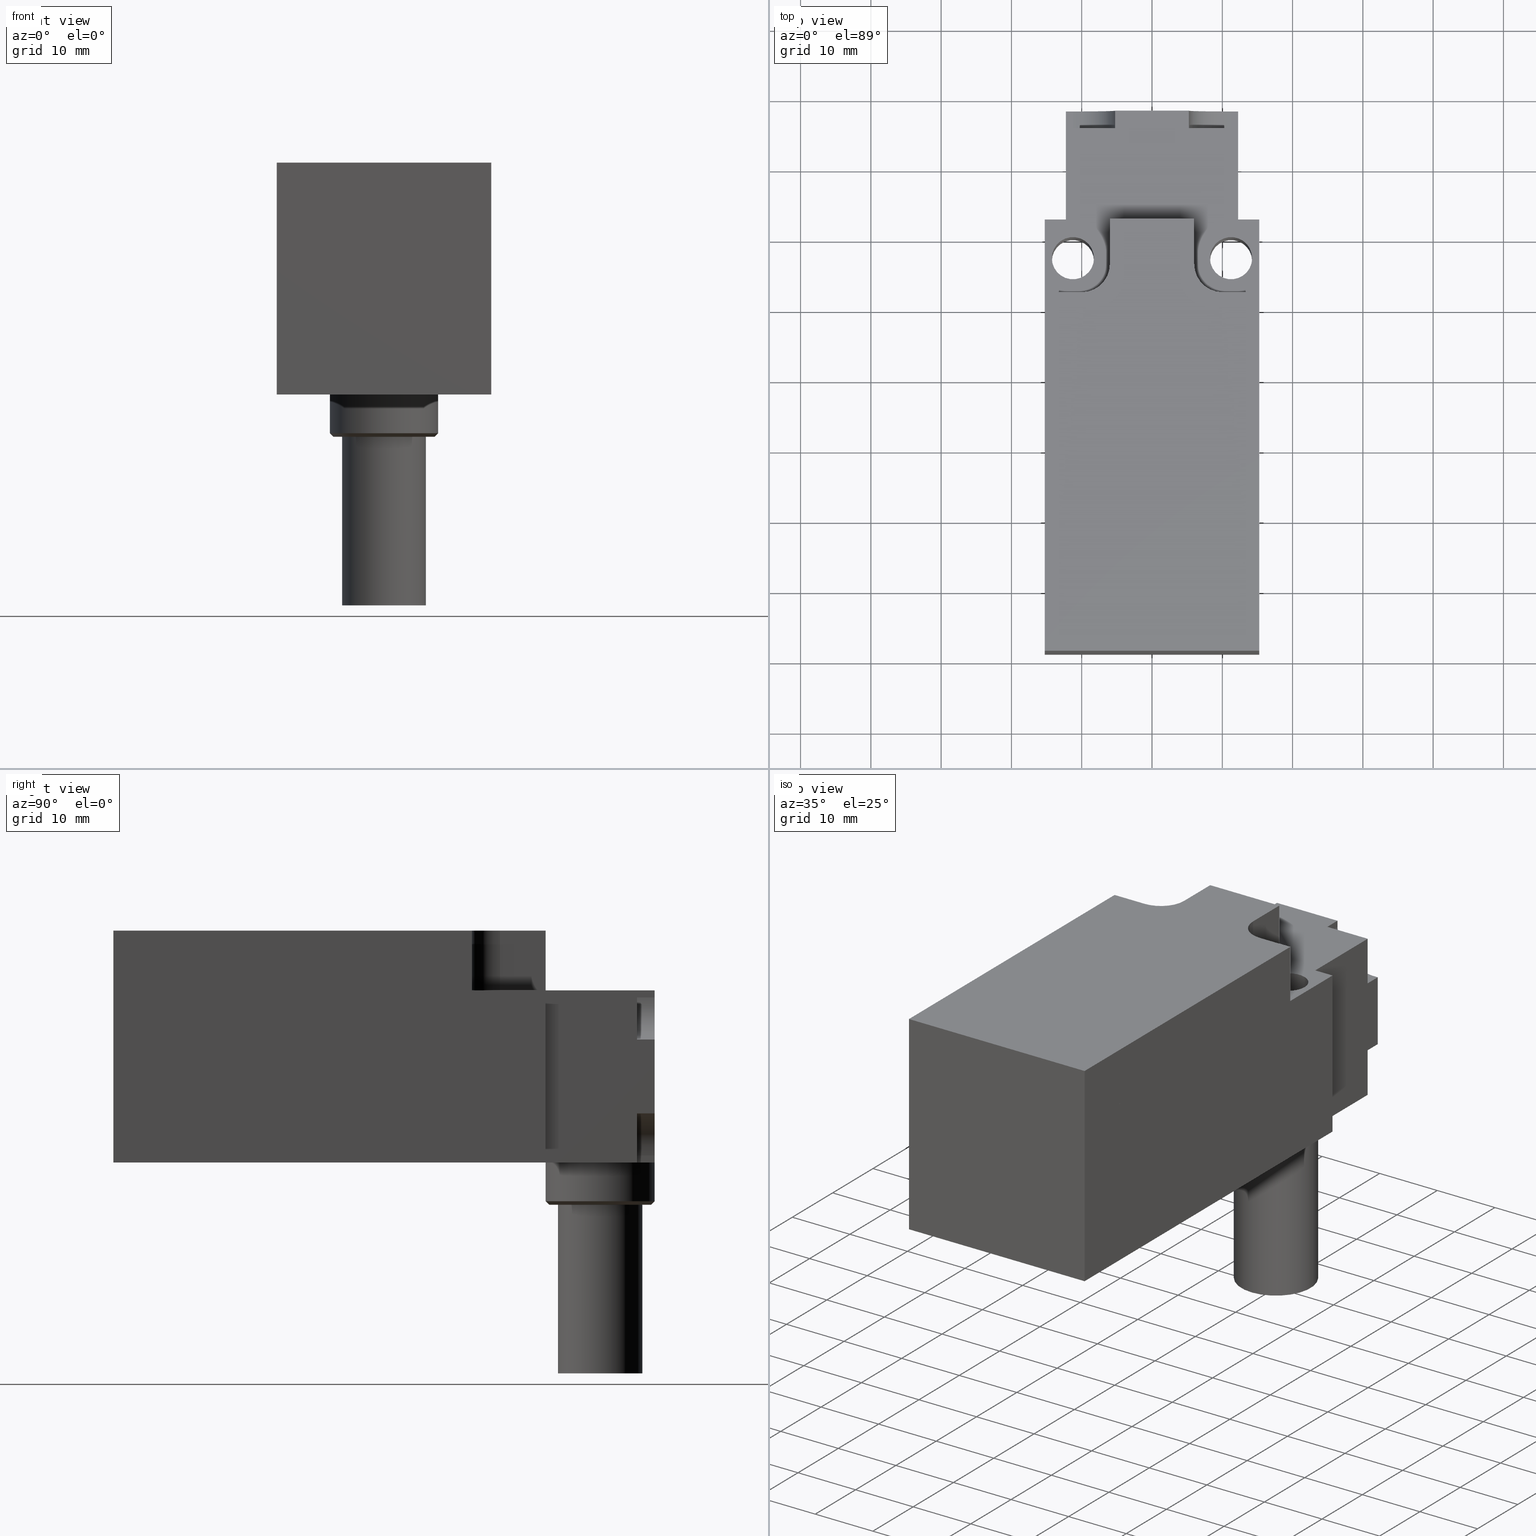
[diagram: canonical four-view strip — front | top / right | iso, engineering-drawing reading convention]
A machine part, canonical four-view strip (front | top / right | iso — engineering-drawing reading convention). The complete STEP part file that produces these views, byte-faithful:
ISO-10303-21;
HEADER;
/****************************************************************
 * Generated by software with PDE/Lib inside                    *
 * PDElib Version v4.4, created Mon 02/23/2004                  *
 * International Technegroup Inc. (www.iti-oh.com)              *
 ****************************************************************/
FILE_DESCRIPTION(('STEP AP203'),'2;1');
FILE_NAME('20.016.00.stp','2011-03-07T09:17:43',(''),(''),'2009.3.110','THINKDESIGN','');
FILE_SCHEMA(('CONFIG_CONTROL_DESIGN'));
ENDSEC;
DATA;
#2=CARTESIAN_POINT('',(-15.249999999938993,-69.249999999723059,24.499999999902048));
#3=DIRECTION('',(0.0,-1.0,0.0));
#4=DIRECTION('',(1.0,0.0,0.0));
#5=AXIS2_PLACEMENT_3D('',#2,#3,#4);
#6=PLANE('',#5);
#7=CARTESIAN_POINT('',(-15.249999999938993,-69.249999999723059,24.499999999902048));
#8=VERTEX_POINT('',#7);
#9=CARTESIAN_POINT('',(15.249999999939135,-69.249999999723059,24.499999999902048));
#10=VERTEX_POINT('',#9);
#11=CARTESIAN_POINT('',(-15.249999999938993,-69.249999999723059,24.499999999902048));
#12=DIRECTION('',(1.0,0.0,0.0));
#13=VECTOR('',#12,30.499999999878128);
#14=LINE('',#11,#13);
#15=EDGE_CURVE('',#8,#10,#14,.T.);
#16=ORIENTED_EDGE('',*,*,#15,.T.);
#17=CARTESIAN_POINT('',(15.249999999939135,-69.249999999723059,33.000000114096991));
#18=VERTEX_POINT('',#17);
#19=CARTESIAN_POINT('',(15.249999999939135,-69.249999999723059,24.499999999902048));
#20=DIRECTION('',(0.0,0.0,1.0));
#21=VECTOR('',#20,8.500000114194943);
#22=LINE('',#19,#21);
#23=EDGE_CURVE('',#10,#18,#22,.T.);
#24=ORIENTED_EDGE('',*,*,#23,.T.);
#25=CARTESIAN_POINT('',(-15.249999999938993,-69.249999999723059,33.000000114096991));
#26=VERTEX_POINT('',#25);
#27=CARTESIAN_POINT('',(-15.249999999938993,-69.249999999723059,33.000000114096991));
#28=DIRECTION('',(1.0,0.0,0.0));
#29=VECTOR('',#28,30.499999999878128);
#30=LINE('',#27,#29);
#31=EDGE_CURVE('',#26,#18,#30,.T.);
#32=ORIENTED_EDGE('',*,*,#31,.F.);
#33=CARTESIAN_POINT('',(-15.249999999938993,-69.249999999723059,24.499999999902048));
#34=DIRECTION('',(0.0,0.0,1.0));
#35=VECTOR('',#34,8.500000114194943);
#36=LINE('',#33,#35);
#37=EDGE_CURVE('',#8,#26,#36,.T.);
#38=ORIENTED_EDGE('',*,*,#37,.F.);
#39=EDGE_LOOP('',(#16,#24,#32,#38));
#40=FACE_OUTER_BOUND('',#39,.T.);
#41=ADVANCED_FACE('',(#40),#6,.T.);
#42=CARTESIAN_POINT('',(15.249999999939135,-69.249999999723059,24.499999999902048));
#43=DIRECTION('',(1.0,0.0,0.0));
#44=DIRECTION('',(0.0,1.0,0.0));
#45=AXIS2_PLACEMENT_3D('',#42,#43,#44);
#46=PLANE('',#45);
#47=CARTESIAN_POINT('',(15.249999999939135,-18.249999999926786,24.499999999902048));
#48=VERTEX_POINT('',#47);
#49=CARTESIAN_POINT('',(15.249999999939142,-69.249999999723059,24.499999999902048));
#50=DIRECTION('',(0.0,1.0,0.0));
#51=VECTOR('',#50,50.999999999796273);
#52=LINE('',#49,#51);
#53=EDGE_CURVE('',#10,#48,#52,.T.);
#54=ORIENTED_EDGE('',*,*,#53,.T.);
#55=CARTESIAN_POINT('',(15.249999999939135,-18.249999999926786,33.000000114096991));
#56=VERTEX_POINT('',#55);
#57=CARTESIAN_POINT('',(15.249999999939135,-18.249999999926786,24.499999999902048));
#58=DIRECTION('',(0.0,0.0,1.0));
#59=VECTOR('',#58,8.500000114194943);
#60=LINE('',#57,#59);
#61=EDGE_CURVE('',#48,#56,#60,.T.);
#62=ORIENTED_EDGE('',*,*,#61,.T.);
#63=CARTESIAN_POINT('',(15.249999999939142,-69.249999999723059,33.000000114096991));
#64=DIRECTION('',(0.0,1.0,0.0));
#65=VECTOR('',#64,50.999999999796273);
#66=LINE('',#63,#65);
#67=EDGE_CURVE('',#18,#56,#66,.T.);
#68=ORIENTED_EDGE('',*,*,#67,.F.);
#69=ORIENTED_EDGE('',*,*,#23,.F.);
#70=EDGE_LOOP('',(#54,#62,#68,#69));
#71=FACE_OUTER_BOUND('',#70,.T.);
#72=ADVANCED_FACE('',(#71),#46,.T.);
#73=CARTESIAN_POINT('',(15.249999999939135,-18.249999999926786,24.499999999902048));
#74=DIRECTION('',(0.0,1.0,0.0));
#75=DIRECTION('',(-1.0,0.0,0.0));
#76=AXIS2_PLACEMENT_3D('',#73,#74,#75);
#77=PLANE('',#76);
#78=CARTESIAN_POINT('',(9.999999999959243,-18.249999999926786,24.499999999902048));
#79=VERTEX_POINT('',#78);
#80=CARTESIAN_POINT('',(15.249999999939128,-18.249999999926786,24.499999999902048));
#81=DIRECTION('',(-1.0,0.0,0.0));
#82=VECTOR('',#81,5.249999999979885);
#83=LINE('',#80,#82);
#84=EDGE_CURVE('',#48,#79,#83,.T.);
#85=ORIENTED_EDGE('',*,*,#84,.T.);
#86=CARTESIAN_POINT('',(9.999999999959243,-18.249999999926786,33.000000114096991));
#87=VERTEX_POINT('',#86);
#88=CARTESIAN_POINT('',(9.999999999959243,-18.249999999926786,24.499999999902048));
#89=DIRECTION('',(0.0,0.0,1.0));
#90=VECTOR('',#89,8.500000114194943);
#91=LINE('',#88,#90);
#92=EDGE_CURVE('',#79,#87,#91,.T.);
#93=ORIENTED_EDGE('',*,*,#92,.T.);
#94=CARTESIAN_POINT('',(15.249999999939128,-18.249999999926786,33.000000114096991));
#95=DIRECTION('',(-1.0,0.0,0.0));
#96=VECTOR('',#95,5.249999999979885);
#97=LINE('',#94,#96);
#98=EDGE_CURVE('',#56,#87,#97,.T.);
#99=ORIENTED_EDGE('',*,*,#98,.F.);
#100=ORIENTED_EDGE('',*,*,#61,.F.);
#101=EDGE_LOOP('',(#85,#93,#99,#100));
#102=FACE_OUTER_BOUND('',#101,.T.);
#103=ADVANCED_FACE('',(#102),#77,.T.);
#104=CARTESIAN_POINT('',(9.999999999959243,-14.249999999943057,24.499999999902048));
#105=DIRECTION('',(0.0,0.0,-1.0));
#106=DIRECTION('',(-1.836970E-016,-1.0,0.0));
#107=AXIS2_PLACEMENT_3D('',#104,#105,#106);
#108=CYLINDRICAL_SURFACE('',#107,3.999999999983729);
#109=CARTESIAN_POINT('',(5.999999999975515,-14.249999999943057,24.499999999902048));
#110=VERTEX_POINT('',#109);
#111=CARTESIAN_POINT('',(9.999999999959243,-14.249999999943057,24.499999999902048));
#112=DIRECTION('',(0.0,0.0,-1.0));
#113=DIRECTION('',(1.0,0.0,0.0));
#114=AXIS2_PLACEMENT_3D('',#111,#112,#113);
#115=CIRCLE('',#114,3.999999999983729);
#116=EDGE_CURVE('',#79,#110,#115,.T.);
#117=ORIENTED_EDGE('',*,*,#116,.T.);
#118=CARTESIAN_POINT('',(5.999999999975515,-14.249999999943057,33.000000114096991));
#119=VERTEX_POINT('',#118);
#120=CARTESIAN_POINT('',(5.999999999975515,-14.249999999943057,24.499999999902048));
#121=DIRECTION('',(0.0,0.0,1.0));
#122=VECTOR('',#121,8.500000114194943);
#123=LINE('',#120,#122);
#124=EDGE_CURVE('',#110,#119,#123,.T.);
#125=ORIENTED_EDGE('',*,*,#124,.T.);
#126=CARTESIAN_POINT('',(9.999999999959243,-14.249999999943057,33.000000114096991));
#127=DIRECTION('',(0.0,0.0,-1.0));
#128=DIRECTION('',(1.0,0.0,0.0));
#129=AXIS2_PLACEMENT_3D('',#126,#127,#128);
#130=CIRCLE('',#129,3.999999999983729);
#131=EDGE_CURVE('',#87,#119,#130,.T.);
#132=ORIENTED_EDGE('',*,*,#131,.F.);
#133=ORIENTED_EDGE('',*,*,#92,.F.);
#134=EDGE_LOOP('',(#117,#125,#132,#133));
#135=FACE_OUTER_BOUND('',#134,.T.);
#136=ADVANCED_FACE('',(#135),#108,.F.);
#137=CARTESIAN_POINT('',(5.999999999975515,-14.249999999943057,24.499999999902048));
#138=DIRECTION('',(1.0,0.0,0.0));
#139=DIRECTION('',(0.0,1.0,0.0));
#140=AXIS2_PLACEMENT_3D('',#137,#138,#139);
#141=PLANE('',#140);
#142=CARTESIAN_POINT('',(5.999999999975515,-7.749999999969077,24.499999999902048));
#143=VERTEX_POINT('',#142);
#144=CARTESIAN_POINT('',(5.999999999975515,-14.249999999943057,24.499999999902048));
#145=DIRECTION('',(0.0,1.0,0.0));
#146=VECTOR('',#145,6.499999999973980);
#147=LINE('',#144,#146);
#148=EDGE_CURVE('',#110,#143,#147,.T.);
#149=ORIENTED_EDGE('',*,*,#148,.T.);
#150=CARTESIAN_POINT('',(5.999999999975515,-7.749999999969077,33.000000114096991));
#151=VERTEX_POINT('',#150);
#152=CARTESIAN_POINT('',(5.999999999975515,-7.749999999969077,24.499999999902048));
#153=DIRECTION('',(0.0,0.0,1.0));
#154=VECTOR('',#153,8.500000114194943);
#155=LINE('',#152,#154);
#156=EDGE_CURVE('',#143,#151,#155,.T.);
#157=ORIENTED_EDGE('',*,*,#156,.T.);
#158=CARTESIAN_POINT('',(5.999999999975515,-14.249999999943057,33.000000114096991));
#159=DIRECTION('',(0.0,1.0,0.0));
#160=VECTOR('',#159,6.499999999973980);
#161=LINE('',#158,#160);
#162=EDGE_CURVE('',#119,#151,#161,.T.);
#163=ORIENTED_EDGE('',*,*,#162,.F.);
#164=ORIENTED_EDGE('',*,*,#124,.F.);
#165=EDGE_LOOP('',(#149,#157,#163,#164));
#166=FACE_OUTER_BOUND('',#165,.T.);
#167=ADVANCED_FACE('',(#166),#141,.T.);
#168=CARTESIAN_POINT('',(5.999999999975515,-7.749999999969077,24.499999999902048));
#169=DIRECTION('',(0.0,1.0,0.0));
#170=DIRECTION('',(-1.0,0.0,0.0));
#171=AXIS2_PLACEMENT_3D('',#168,#169,#170);
#172=PLANE('',#171);
#173=CARTESIAN_POINT('',(-5.999999999976282,-7.749999999969077,24.499999999902048));
#174=VERTEX_POINT('',#173);
#175=CARTESIAN_POINT('',(5.999999999975515,-7.749999999969077,24.499999999902048));
#176=DIRECTION('',(-1.0,0.0,0.0));
#177=VECTOR('',#176,11.999999999951797);
#178=LINE('',#175,#177);
#179=EDGE_CURVE('',#143,#174,#178,.T.);
#180=ORIENTED_EDGE('',*,*,#179,.T.);
#181=CARTESIAN_POINT('',(-5.999999999976282,-7.749999999969077,33.000000114096991));
#182=VERTEX_POINT('',#181);
#183=CARTESIAN_POINT('',(-5.999999999976282,-7.749999999969077,24.499999999902048));
#184=DIRECTION('',(0.0,0.0,1.0));
#185=VECTOR('',#184,8.500000114194943);
#186=LINE('',#183,#185);
#187=EDGE_CURVE('',#174,#182,#186,.T.);
#188=ORIENTED_EDGE('',*,*,#187,.T.);
#189=CARTESIAN_POINT('',(5.999999999975515,-7.749999999969077,33.000000114096991));
#190=DIRECTION('',(-1.0,0.0,0.0));
#191=VECTOR('',#190,11.999999999951797);
#192=LINE('',#189,#191);
#193=EDGE_CURVE('',#151,#182,#192,.T.);
#194=ORIENTED_EDGE('',*,*,#193,.F.);
#195=ORIENTED_EDGE('',*,*,#156,.F.);
#196=EDGE_LOOP('',(#180,#188,#194,#195));
#197=FACE_OUTER_BOUND('',#196,.T.);
#198=ADVANCED_FACE('',(#197),#172,.T.);
#199=CARTESIAN_POINT('',(-5.999999999976282,-7.749999999969077,24.499999999902048));
#200=DIRECTION('',(-1.0,0.0,0.0));
#201=DIRECTION('',(0.0,-1.0,0.0));
#202=AXIS2_PLACEMENT_3D('',#199,#200,#201);
#203=PLANE('',#202);
#204=CARTESIAN_POINT('',(-5.999999999976282,-14.249999999943057,24.499999999902048));
#205=VERTEX_POINT('',#204);
#206=CARTESIAN_POINT('',(-5.999999999976282,-7.749999999969077,24.499999999902048));
#207=DIRECTION('',(0.0,-1.0,0.0));
#208=VECTOR('',#207,6.499999999973980);
#209=LINE('',#206,#208);
#210=EDGE_CURVE('',#174,#205,#209,.T.);
#211=ORIENTED_EDGE('',*,*,#210,.T.);
#212=CARTESIAN_POINT('',(-5.999999999976282,-14.249999999943057,33.000000114096991));
#213=VERTEX_POINT('',#212);
#214=CARTESIAN_POINT('',(-5.999999999976282,-14.249999999943057,24.499999999902048));
#215=DIRECTION('',(0.0,0.0,1.0));
#216=VECTOR('',#215,8.500000114194943);
#217=LINE('',#214,#216);
#218=EDGE_CURVE('',#205,#213,#217,.T.);
#219=ORIENTED_EDGE('',*,*,#218,.T.);
#220=CARTESIAN_POINT('',(-5.999999999976282,-7.749999999969077,33.000000114096991));
#221=DIRECTION('',(0.0,-1.0,0.0));
#222=VECTOR('',#221,6.499999999973980);
#223=LINE('',#220,#222);
#224=EDGE_CURVE('',#182,#213,#223,.T.);
#225=ORIENTED_EDGE('',*,*,#224,.F.);
#226=ORIENTED_EDGE('',*,*,#187,.F.);
#227=EDGE_LOOP('',(#211,#219,#225,#226));
#228=FACE_OUTER_BOUND('',#227,.T.);
#229=ADVANCED_FACE('',(#228),#203,.T.);
#230=CARTESIAN_POINT('',(-9.999999999960039,-14.249999999943029,24.499999999902048));
#231=DIRECTION('',(0.0,0.0,-1.0));
#232=DIRECTION('',(1.0,0.0,0.0));
#233=AXIS2_PLACEMENT_3D('',#230,#231,#232);
#234=CYLINDRICAL_SURFACE('',#233,3.999999999983759);
#235=CARTESIAN_POINT('',(-9.999999999959911,-18.249999999926786,24.499999999902048));
#236=VERTEX_POINT('',#235);
#237=CARTESIAN_POINT('',(-9.999999999960039,-14.249999999943029,24.499999999902048));
#238=DIRECTION('',(0.0,0.0,-1.0));
#239=DIRECTION('',(1.0,0.0,0.0));
#240=AXIS2_PLACEMENT_3D('',#237,#238,#239);
#241=CIRCLE('',#240,3.999999999983759);
#242=EDGE_CURVE('',#205,#236,#241,.T.);
#243=ORIENTED_EDGE('',*,*,#242,.T.);
#244=CARTESIAN_POINT('',(-9.999999999959911,-18.249999999926786,33.000000114096991));
#245=VERTEX_POINT('',#244);
#246=CARTESIAN_POINT('',(-9.999999999959911,-18.249999999926786,24.499999999902048));
#247=DIRECTION('',(0.0,0.0,1.0));
#248=VECTOR('',#247,8.500000114194943);
#249=LINE('',#246,#248);
#250=EDGE_CURVE('',#236,#245,#249,.T.);
#251=ORIENTED_EDGE('',*,*,#250,.T.);
#252=CARTESIAN_POINT('',(-9.999999999960039,-14.249999999943029,33.000000114096991));
#253=DIRECTION('',(0.0,0.0,-1.0));
#254=DIRECTION('',(1.0,0.0,0.0));
#255=AXIS2_PLACEMENT_3D('',#252,#253,#254);
#256=CIRCLE('',#255,3.999999999983759);
#257=EDGE_CURVE('',#213,#245,#256,.T.);
#258=ORIENTED_EDGE('',*,*,#257,.F.);
#259=ORIENTED_EDGE('',*,*,#218,.F.);
#260=EDGE_LOOP('',(#243,#251,#258,#259));
#261=FACE_OUTER_BOUND('',#260,.T.);
#262=ADVANCED_FACE('',(#261),#234,.F.);
#263=CARTESIAN_POINT('',(-9.999999999959911,-18.249999999926786,24.499999999902048));
#264=DIRECTION('',(0.0,1.0,0.0));
#265=DIRECTION('',(-1.0,0.0,0.0));
#266=AXIS2_PLACEMENT_3D('',#263,#264,#265);
#267=PLANE('',#266);
#268=CARTESIAN_POINT('',(-15.249999999938993,-18.249999999926786,24.499999999902048));
#269=VERTEX_POINT('',#268);
#270=CARTESIAN_POINT('',(-9.999999999959911,-18.249999999926786,24.499999999902048));
#271=DIRECTION('',(-1.0,0.0,0.0));
#272=VECTOR('',#271,5.249999999979082);
#273=LINE('',#270,#272);
#274=EDGE_CURVE('',#236,#269,#273,.T.);
#275=ORIENTED_EDGE('',*,*,#274,.T.);
#276=CARTESIAN_POINT('',(-15.249999999938993,-18.249999999926786,33.000000114096991));
#277=VERTEX_POINT('',#276);
#278=CARTESIAN_POINT('',(-15.249999999938993,-18.249999999926786,24.499999999902048));
#279=DIRECTION('',(0.0,0.0,1.0));
#280=VECTOR('',#279,8.500000114194943);
#281=LINE('',#278,#280);
#282=EDGE_CURVE('',#269,#277,#281,.T.);
#283=ORIENTED_EDGE('',*,*,#282,.T.);
#284=CARTESIAN_POINT('',(-9.999999999959911,-18.249999999926786,33.000000114096991));
#285=DIRECTION('',(-1.0,0.0,0.0));
#286=VECTOR('',#285,5.249999999979082);
#287=LINE('',#284,#286);
#288=EDGE_CURVE('',#245,#277,#287,.T.);
#289=ORIENTED_EDGE('',*,*,#288,.F.);
#290=ORIENTED_EDGE('',*,*,#250,.F.);
#291=EDGE_LOOP('',(#275,#283,#289,#290));
#292=FACE_OUTER_BOUND('',#291,.T.);
#293=ADVANCED_FACE('',(#292),#267,.T.);
#294=CARTESIAN_POINT('',(-15.249999999938993,-18.249999999926786,24.499999999902048));
#295=DIRECTION('',(-1.0,0.0,0.0));
#296=DIRECTION('',(0.0,-1.0,0.0));
#297=AXIS2_PLACEMENT_3D('',#294,#295,#296);
#298=PLANE('',#297);
#299=CARTESIAN_POINT('',(-15.249999999938993,-18.249999999926786,24.499999999902048));
#300=DIRECTION('',(0.0,-1.0,0.0));
#301=VECTOR('',#300,50.999999999796273);
#302=LINE('',#299,#301);
#303=EDGE_CURVE('',#269,#8,#302,.T.);
#304=ORIENTED_EDGE('',*,*,#303,.T.);
#305=ORIENTED_EDGE('',*,*,#37,.T.);
#306=CARTESIAN_POINT('',(-15.249999999938993,-18.249999999926786,33.000000114096991));
#307=DIRECTION('',(0.0,-1.0,0.0));
#308=VECTOR('',#307,50.999999999796273);
#309=LINE('',#306,#308);
#310=EDGE_CURVE('',#277,#26,#309,.T.);
#311=ORIENTED_EDGE('',*,*,#310,.F.);
#312=ORIENTED_EDGE('',*,*,#282,.F.);
#313=EDGE_LOOP('',(#304,#305,#311,#312));
#314=FACE_OUTER_BOUND('',#313,.T.);
#315=ADVANCED_FACE('',(#314),#298,.T.);
#316=CARTESIAN_POINT('',(-18.300004724420930,-75.400004724192570,24.499999999902048));
#317=DIRECTION('',(0.0,0.0,1.0));
#318=DIRECTION('',(1.0,0.0,0.0));
#319=AXIS2_PLACEMENT_3D('',#316,#317,#318);
#320=PLANE('',#319);
#321=ORIENTED_EDGE('',*,*,#303,.F.);
#322=ORIENTED_EDGE('',*,*,#274,.F.);
#323=ORIENTED_EDGE('',*,*,#242,.F.);
#324=ORIENTED_EDGE('',*,*,#210,.F.);
#325=ORIENTED_EDGE('',*,*,#179,.F.);
#326=ORIENTED_EDGE('',*,*,#148,.F.);
#327=ORIENTED_EDGE('',*,*,#116,.F.);
#328=ORIENTED_EDGE('',*,*,#84,.F.);
#329=ORIENTED_EDGE('',*,*,#53,.F.);
#330=ORIENTED_EDGE('',*,*,#15,.F.);
#331=EDGE_LOOP('',(#321,#322,#323,#324,#325,#326,#327,#328,#329,#330));
#332=FACE_OUTER_BOUND('',#331,.T.);
#333=ADVANCED_FACE('',(#332),#320,.F.);
#334=CARTESIAN_POINT('',(-18.300004724420930,-75.400004724192570,33.000000114096991));
#335=DIRECTION('',(0.0,0.0,1.0));
#336=DIRECTION('',(1.0,0.0,0.0));
#337=AXIS2_PLACEMENT_3D('',#334,#335,#336);
#338=PLANE('',#337);
#339=ORIENTED_EDGE('',*,*,#31,.T.);
#340=ORIENTED_EDGE('',*,*,#67,.T.);
#341=ORIENTED_EDGE('',*,*,#98,.T.);
#342=ORIENTED_EDGE('',*,*,#131,.T.);
#343=ORIENTED_EDGE('',*,*,#162,.T.);
#344=ORIENTED_EDGE('',*,*,#193,.T.);
#345=ORIENTED_EDGE('',*,*,#224,.T.);
#346=ORIENTED_EDGE('',*,*,#257,.T.);
#347=ORIENTED_EDGE('',*,*,#288,.T.);
#348=ORIENTED_EDGE('',*,*,#310,.T.);
#349=EDGE_LOOP('',(#339,#340,#341,#342,#343,#344,#345,#346,#347,#348));
#350=FACE_OUTER_BOUND('',#349,.T.);
#351=ADVANCED_FACE('',(#350),#338,.T.);
#352=CLOSED_SHELL('',(#41,#72,#103,#136,#167,#198,#229,#262,#293,#315,#333,#351));
#353=MANIFOLD_SOLID_BREP('',#352);
#354=CARTESIAN_POINT('',(15.249999999938964,-69.249999999723059,0.0));
#355=DIRECTION('',(1.0,0.0,0.0));
#356=DIRECTION('',(0.0,1.0,0.0));
#357=AXIS2_PLACEMENT_3D('',#354,#355,#356);
#358=PLANE('',#357);
#359=CARTESIAN_POINT('',(15.249999999938964,-69.249999999723059,0.0));
#360=VERTEX_POINT('',#359);
#361=CARTESIAN_POINT('',(15.249999999938964,-7.749999999969077,0.0));
#362=VERTEX_POINT('',#361);
#363=CARTESIAN_POINT('',(15.249999999938964,-69.249999999723059,0.0));
#364=DIRECTION('',(0.0,1.0,0.0));
#365=VECTOR('',#364,61.499999999753982);
#366=LINE('',#363,#365);
#367=EDGE_CURVE('',#360,#362,#366,.T.);
#368=ORIENTED_EDGE('',*,*,#367,.T.);
#369=CARTESIAN_POINT('',(15.249999999938964,-7.749999999969077,24.499999999902048));
#370=VERTEX_POINT('',#369);
#371=CARTESIAN_POINT('',(15.249999999938964,-7.749999999969077,0.0));
#372=DIRECTION('',(0.0,0.0,1.0));
#373=VECTOR('',#372,24.499999999902048);
#374=LINE('',#371,#373);
#375=EDGE_CURVE('',#362,#370,#374,.T.);
#376=ORIENTED_EDGE('',*,*,#375,.T.);
#377=CARTESIAN_POINT('',(15.249999999938964,-69.249999999723059,24.499999999902048));
#378=VERTEX_POINT('',#377);
#379=CARTESIAN_POINT('',(15.249999999938964,-69.249999999723059,24.499999999902048));
#380=DIRECTION('',(0.0,1.0,0.0));
#381=VECTOR('',#380,61.499999999753982);
#382=LINE('',#379,#381);
#383=EDGE_CURVE('',#378,#370,#382,.T.);
#384=ORIENTED_EDGE('',*,*,#383,.F.);
#385=CARTESIAN_POINT('',(15.249999999938964,-69.249999999723059,0.0));
#386=DIRECTION('',(0.0,0.0,1.0));
#387=VECTOR('',#386,24.499999999902048);
#388=LINE('',#385,#387);
#389=EDGE_CURVE('',#360,#378,#388,.T.);
#390=ORIENTED_EDGE('',*,*,#389,.F.);
#391=EDGE_LOOP('',(#368,#376,#384,#390));
#392=FACE_OUTER_BOUND('',#391,.T.);
#393=ADVANCED_FACE('',(#392),#358,.T.);
#394=CARTESIAN_POINT('',(15.249999999938964,-7.749999999969077,0.0));
#395=DIRECTION('',(0.0,1.0,0.0));
#396=DIRECTION('',(-1.0,0.0,0.0));
#397=AXIS2_PLACEMENT_3D('',#394,#395,#396);
#398=PLANE('',#397);
#399=CARTESIAN_POINT('',(-15.249999999938993,-7.749999999969077,0.0));
#400=VERTEX_POINT('',#399);
#401=CARTESIAN_POINT('',(15.249999999938964,-7.749999999969077,0.0));
#402=DIRECTION('',(-1.0,0.0,0.0));
#403=VECTOR('',#402,30.499999999877957);
#404=LINE('',#401,#403);
#405=EDGE_CURVE('',#362,#400,#404,.T.);
#406=ORIENTED_EDGE('',*,*,#405,.T.);
#407=CARTESIAN_POINT('',(-15.249999999938993,-7.749999999969077,24.499999999902048));
#408=VERTEX_POINT('',#407);
#409=CARTESIAN_POINT('',(-15.249999999938993,-7.749999999969077,0.0));
#410=DIRECTION('',(0.0,0.0,1.0));
#411=VECTOR('',#410,24.499999999902048);
#412=LINE('',#409,#411);
#413=EDGE_CURVE('',#400,#408,#412,.T.);
#414=ORIENTED_EDGE('',*,*,#413,.T.);
#415=CARTESIAN_POINT('',(15.249999999938964,-7.749999999969077,24.499999999902048));
#416=DIRECTION('',(-1.0,0.0,0.0));
#417=VECTOR('',#416,30.499999999877957);
#418=LINE('',#415,#417);
#419=EDGE_CURVE('',#370,#408,#418,.T.);
#420=ORIENTED_EDGE('',*,*,#419,.F.);
#421=ORIENTED_EDGE('',*,*,#375,.F.);
#422=EDGE_LOOP('',(#406,#414,#420,#421));
#423=FACE_OUTER_BOUND('',#422,.T.);
#424=ADVANCED_FACE('',(#423),#398,.T.);
#425=CARTESIAN_POINT('',(-15.249999999938993,-7.749999999969077,0.0));
#426=DIRECTION('',(-1.0,0.0,0.0));
#427=DIRECTION('',(0.0,-1.0,0.0));
#428=AXIS2_PLACEMENT_3D('',#425,#426,#427);
#429=PLANE('',#428);
#430=CARTESIAN_POINT('',(-15.249999999938993,-69.249999999723059,0.0));
#431=VERTEX_POINT('',#430);
#432=CARTESIAN_POINT('',(-15.249999999938993,-7.749999999969077,0.0));
#433=DIRECTION('',(0.0,-1.0,0.0));
#434=VECTOR('',#433,61.499999999753982);
#435=LINE('',#432,#434);
#436=EDGE_CURVE('',#400,#431,#435,.T.);
#437=ORIENTED_EDGE('',*,*,#436,.T.);
#438=CARTESIAN_POINT('',(-15.249999999938993,-69.249999999723059,24.499999999902048));
#439=VERTEX_POINT('',#438);
#440=CARTESIAN_POINT('',(-15.249999999938993,-69.249999999723059,0.0));
#441=DIRECTION('',(0.0,0.0,1.0));
#442=VECTOR('',#441,24.499999999902048);
#443=LINE('',#440,#442);
#444=EDGE_CURVE('',#431,#439,#443,.T.);
#445=ORIENTED_EDGE('',*,*,#444,.T.);
#446=CARTESIAN_POINT('',(-15.249999999938993,-7.749999999969077,24.499999999902048));
#447=DIRECTION('',(0.0,-1.0,0.0));
#448=VECTOR('',#447,61.499999999753982);
#449=LINE('',#446,#448);
#450=EDGE_CURVE('',#408,#439,#449,.T.);
#451=ORIENTED_EDGE('',*,*,#450,.F.);
#452=ORIENTED_EDGE('',*,*,#413,.F.);
#453=EDGE_LOOP('',(#437,#445,#451,#452));
#454=FACE_OUTER_BOUND('',#453,.T.);
#455=ADVANCED_FACE('',(#454),#429,.T.);
#456=CARTESIAN_POINT('',(-15.249999999938993,-69.249999999723059,0.0));
#457=DIRECTION('',(0.0,-1.0,0.0));
#458=DIRECTION('',(1.0,0.0,0.0));
#459=AXIS2_PLACEMENT_3D('',#456,#457,#458);
#460=PLANE('',#459);
#461=CARTESIAN_POINT('',(-15.249999999938993,-69.249999999723059,0.0));
#462=DIRECTION('',(1.0,0.0,0.0));
#463=VECTOR('',#462,30.499999999877957);
#464=LINE('',#461,#463);
#465=EDGE_CURVE('',#431,#360,#464,.T.);
#466=ORIENTED_EDGE('',*,*,#465,.T.);
#467=ORIENTED_EDGE('',*,*,#389,.T.);
#468=CARTESIAN_POINT('',(-15.249999999938993,-69.249999999723059,24.499999999902048));
#469=DIRECTION('',(1.0,0.0,0.0));
#470=VECTOR('',#469,30.499999999877957);
#471=LINE('',#468,#470);
#472=EDGE_CURVE('',#439,#378,#471,.T.);
#473=ORIENTED_EDGE('',*,*,#472,.F.);
#474=ORIENTED_EDGE('',*,*,#444,.F.);
#475=EDGE_LOOP('',(#466,#467,#473,#474));
#476=FACE_OUTER_BOUND('',#475,.T.);
#477=ADVANCED_FACE('',(#476),#460,.T.);
#478=CARTESIAN_POINT('',(-18.300004724687000,-75.400004724428015,0.0));
#479=DIRECTION('',(0.0,0.0,1.0));
#480=DIRECTION('',(1.0,0.0,0.0));
#481=AXIS2_PLACEMENT_3D('',#478,#479,#480);
#482=PLANE('',#481);
#483=ORIENTED_EDGE('',*,*,#465,.F.);
#484=ORIENTED_EDGE('',*,*,#436,.F.);
#485=ORIENTED_EDGE('',*,*,#405,.F.);
#486=ORIENTED_EDGE('',*,*,#367,.F.);
#487=EDGE_LOOP('',(#483,#484,#485,#486));
#488=FACE_OUTER_BOUND('',#487,.T.);
#489=CARTESIAN_POINT('',(-14.249999999943370,-13.249999999946795,0.0));
#490=VERTEX_POINT('',#489);
#491=CARTESIAN_POINT('',(-8.249999999967358,-13.249999999946795,0.0));
#492=VERTEX_POINT('',#491);
#493=CARTESIAN_POINT('',(-11.249999999955364,-13.249999999946795,0.0));
#494=DIRECTION('',(0.0,0.0,-1.0));
#495=DIRECTION('',(1.0,0.0,0.0));
#496=AXIS2_PLACEMENT_3D('',#493,#494,#495);
#497=CIRCLE('',#496,2.999999999988006);
#498=EDGE_CURVE('',#490,#492,#497,.T.);
#499=ORIENTED_EDGE('',*,*,#498,.F.);
#500=CARTESIAN_POINT('',(-11.249999999955364,-13.249999999946795,0.0));
#501=DIRECTION('',(0.0,0.0,-1.0));
#502=DIRECTION('',(1.0,0.0,0.0));
#503=AXIS2_PLACEMENT_3D('',#500,#501,#502);
#504=CIRCLE('',#503,2.999999999988006);
#505=EDGE_CURVE('',#492,#490,#504,.T.);
#506=ORIENTED_EDGE('',*,*,#505,.F.);
#507=EDGE_LOOP('',(#499,#506));
#508=FACE_BOUND('',#507,.T.);
#509=CARTESIAN_POINT('',(8.249999999966590,-13.249999999946795,0.0));
#510=VERTEX_POINT('',#509);
#511=CARTESIAN_POINT('',(14.249999999942602,-13.249999999946795,0.0));
#512=VERTEX_POINT('',#511);
#513=CARTESIAN_POINT('',(11.249999999954596,-13.249999999946795,0.0));
#514=DIRECTION('',(0.0,0.0,-1.0));
#515=DIRECTION('',(1.0,0.0,0.0));
#516=AXIS2_PLACEMENT_3D('',#513,#514,#515);
#517=CIRCLE('',#516,2.999999999988006);
#518=EDGE_CURVE('',#510,#512,#517,.T.);
#519=ORIENTED_EDGE('',*,*,#518,.F.);
#520=CARTESIAN_POINT('',(11.249999999954596,-13.249999999946795,0.0));
#521=DIRECTION('',(0.0,0.0,-1.0));
#522=DIRECTION('',(1.0,0.0,0.0));
#523=AXIS2_PLACEMENT_3D('',#520,#521,#522);
#524=CIRCLE('',#523,2.999999999988006);
#525=EDGE_CURVE('',#512,#510,#524,.T.);
#526=ORIENTED_EDGE('',*,*,#525,.F.);
#527=EDGE_LOOP('',(#519,#526));
#528=FACE_BOUND('',#527,.T.);
#529=ADVANCED_FACE('',(#488,#508,#528),#482,.F.);
#530=CARTESIAN_POINT('',(-18.300004724687000,-75.400004724428015,24.499999999902048));
#531=DIRECTION('',(0.0,0.0,1.0));
#532=DIRECTION('',(1.0,0.0,0.0));
#533=AXIS2_PLACEMENT_3D('',#530,#531,#532);
#534=PLANE('',#533);
#535=ORIENTED_EDGE('',*,*,#383,.T.);
#536=ORIENTED_EDGE('',*,*,#419,.T.);
#537=ORIENTED_EDGE('',*,*,#450,.T.);
#538=ORIENTED_EDGE('',*,*,#472,.T.);
#539=EDGE_LOOP('',(#535,#536,#537,#538));
#540=FACE_OUTER_BOUND('',#539,.T.);
#541=CARTESIAN_POINT('',(-14.249999999943370,-13.249999999946795,24.499999999902048));
#542=VERTEX_POINT('',#541);
#543=CARTESIAN_POINT('',(-8.249999999967358,-13.249999999946795,24.499999999902048));
#544=VERTEX_POINT('',#543);
#545=CARTESIAN_POINT('',(-11.249999999955364,-13.249999999946795,24.499999999902048));
#546=DIRECTION('',(0.0,0.0,1.0));
#547=DIRECTION('',(1.0,0.0,0.0));
#548=AXIS2_PLACEMENT_3D('',#545,#546,#547);
#549=CIRCLE('',#548,2.999999999988006);
#550=EDGE_CURVE('',#542,#544,#549,.T.);
#551=ORIENTED_EDGE('',*,*,#550,.F.);
#552=CARTESIAN_POINT('',(-11.249999999955364,-13.249999999946795,24.499999999902048));
#553=DIRECTION('',(0.0,0.0,1.0));
#554=DIRECTION('',(1.0,0.0,0.0));
#555=AXIS2_PLACEMENT_3D('',#552,#553,#554);
#556=CIRCLE('',#555,2.999999999988006);
#557=EDGE_CURVE('',#544,#542,#556,.T.);
#558=ORIENTED_EDGE('',*,*,#557,.F.);
#559=EDGE_LOOP('',(#551,#558));
#560=FACE_BOUND('',#559,.T.);
#561=CARTESIAN_POINT('',(8.249999999966590,-13.249999999946795,24.499999999902048));
#562=VERTEX_POINT('',#561);
#563=CARTESIAN_POINT('',(14.249999999942602,-13.249999999946795,24.499999999902048));
#564=VERTEX_POINT('',#563);
#565=CARTESIAN_POINT('',(11.249999999954596,-13.249999999946795,24.499999999902048));
#566=DIRECTION('',(0.0,0.0,1.0));
#567=DIRECTION('',(1.0,0.0,0.0));
#568=AXIS2_PLACEMENT_3D('',#565,#566,#567);
#569=CIRCLE('',#568,2.999999999988006);
#570=EDGE_CURVE('',#562,#564,#569,.T.);
#571=ORIENTED_EDGE('',*,*,#570,.F.);
#572=CARTESIAN_POINT('',(11.249999999954596,-13.249999999946795,24.499999999902048));
#573=DIRECTION('',(0.0,0.0,1.0));
#574=DIRECTION('',(1.0,0.0,0.0));
#575=AXIS2_PLACEMENT_3D('',#572,#573,#574);
#576=CIRCLE('',#575,2.999999999988006);
#577=EDGE_CURVE('',#564,#562,#576,.T.);
#578=ORIENTED_EDGE('',*,*,#577,.F.);
#579=EDGE_LOOP('',(#571,#578));
#580=FACE_BOUND('',#579,.T.);
#581=ADVANCED_FACE('',(#540,#560,#580),#534,.T.);
#582=CARTESIAN_POINT('',(-11.249999999955364,-13.249999999946795,24.499999999902048));
#583=DIRECTION('',(0.0,0.0,1.0));
#584=DIRECTION('',(1.0,0.0,0.0));
#585=AXIS2_PLACEMENT_3D('',#582,#583,#584);
#586=CYLINDRICAL_SURFACE('',#585,2.999999999988006);
#587=CARTESIAN_POINT('',(-8.249999999967358,-13.249999999946795,24.499999999902048));
#588=DIRECTION('',(0.0,0.0,-1.0));
#589=VECTOR('',#588,24.499999999902048);
#590=LINE('',#587,#589);
#591=EDGE_CURVE('',#544,#492,#590,.T.);
#592=ORIENTED_EDGE('',*,*,#591,.T.);
#593=ORIENTED_EDGE('',*,*,#505,.T.);
#594=ORIENTED_EDGE('',*,*,#498,.T.);
#595=ORIENTED_EDGE('',*,*,#591,.F.);
#596=ORIENTED_EDGE('',*,*,#557,.T.);
#597=ORIENTED_EDGE('',*,*,#550,.T.);
#598=EDGE_LOOP('',(#592,#593,#594,#595,#596,#597));
#599=FACE_OUTER_BOUND('',#598,.T.);
#600=ADVANCED_FACE('',(#599),#586,.F.);
#601=CARTESIAN_POINT('',(11.249999999954596,-13.249999999946795,24.499999999902048));
#602=DIRECTION('',(0.0,0.0,1.0));
#603=DIRECTION('',(1.0,0.0,0.0));
#604=AXIS2_PLACEMENT_3D('',#601,#602,#603);
#605=CYLINDRICAL_SURFACE('',#604,2.999999999988006);
#606=CARTESIAN_POINT('',(14.249999999942602,-13.249999999946795,24.499999999902048));
#607=DIRECTION('',(0.0,0.0,-1.0));
#608=VECTOR('',#607,24.499999999902048);
#609=LINE('',#606,#608);
#610=EDGE_CURVE('',#564,#512,#609,.T.);
#611=ORIENTED_EDGE('',*,*,#610,.T.);
#612=ORIENTED_EDGE('',*,*,#525,.T.);
#613=ORIENTED_EDGE('',*,*,#518,.T.);
#614=ORIENTED_EDGE('',*,*,#610,.F.);
#615=ORIENTED_EDGE('',*,*,#577,.T.);
#616=ORIENTED_EDGE('',*,*,#570,.T.);
#617=EDGE_LOOP('',(#611,#612,#613,#614,#615,#616));
#618=FACE_OUTER_BOUND('',#617,.T.);
#619=ADVANCED_FACE('',(#618),#605,.F.);
#620=CLOSED_SHELL('',(#393,#424,#455,#477,#529,#581,#600,#619));
#621=MANIFOLD_SOLID_BREP('',#620);
#622=CARTESIAN_POINT('',(-15.499999999938154,-15.499999999938154,0.0));
#623=DIRECTION('',(0.0,0.0,1.0));
#624=DIRECTION('',(1.0,0.0,0.0));
#625=AXIS2_PLACEMENT_3D('',#622,#623,#624);
#626=PLANE('',#625);
#627=CARTESIAN_POINT('',(0.0,-7.749999999969077,0.0));
#628=VERTEX_POINT('',#627);
#629=CARTESIAN_POINT('',(0.0,7.749999999969077,0.0));
#630=VERTEX_POINT('',#629);
#631=CARTESIAN_POINT('',(0.0,0.0,0.0));
#632=DIRECTION('',(0.0,0.0,-1.0));
#633=DIRECTION('',(0.0,1.0,0.0));
#634=AXIS2_PLACEMENT_3D('',#631,#632,#633);
#635=CIRCLE('',#634,7.749999999969077);
#636=EDGE_CURVE('',#628,#630,#635,.T.);
#637=ORIENTED_EDGE('',*,*,#636,.F.);
#638=CARTESIAN_POINT('',(0.0,0.0,0.0));
#639=DIRECTION('',(0.0,0.0,-1.0));
#640=DIRECTION('',(0.0,1.0,0.0));
#641=AXIS2_PLACEMENT_3D('',#638,#639,#640);
#642=CIRCLE('',#641,7.749999999969077);
#643=EDGE_CURVE('',#630,#628,#642,.T.);
#644=ORIENTED_EDGE('',*,*,#643,.F.);
#645=EDGE_LOOP('',(#637,#644));
#646=FACE_OUTER_BOUND('',#645,.T.);
#647=CARTESIAN_POINT('',(3.843268263538803,0.0,0.0));
#648=VERTEX_POINT('',#647);
#649=CARTESIAN_POINT('',(-3.843268263538808,0.0,0.0));
#650=VERTEX_POINT('',#649);
#651=CARTESIAN_POINT('',(0.0,0.0,0.0));
#652=DIRECTION('',(0.0,0.0,-1.0));
#653=DIRECTION('',(1.0,0.0,0.0));
#654=AXIS2_PLACEMENT_3D('',#651,#652,#653);
#655=CIRCLE('',#654,3.843268263538808);
#656=EDGE_CURVE('',#648,#650,#655,.T.);
#657=ORIENTED_EDGE('',*,*,#656,.T.);
#658=CARTESIAN_POINT('',(0.0,0.0,0.0));
#659=DIRECTION('',(0.0,0.0,-1.0));
#660=DIRECTION('',(1.0,0.0,0.0));
#661=AXIS2_PLACEMENT_3D('',#658,#659,#660);
#662=CIRCLE('',#661,3.843268263538808);
#663=EDGE_CURVE('',#650,#648,#662,.T.);
#664=ORIENTED_EDGE('',*,*,#663,.T.);
#665=EDGE_LOOP('',(#657,#664));
#666=FACE_BOUND('',#665,.T.);
#667=ADVANCED_FACE('',(#646,#666),#626,.T.);
#668=CARTESIAN_POINT('',(0.0,0.0,0.0));
#669=DIRECTION('',(0.0,0.0,-1.0));
#670=DIRECTION('',(0.0,1.0,0.0));
#671=AXIS2_PLACEMENT_3D('',#668,#669,#670);
#672=CYLINDRICAL_SURFACE('',#671,7.749999999969077);
#673=ORIENTED_EDGE('',*,*,#643,.T.);
#674=ORIENTED_EDGE('',*,*,#636,.T.);
#675=CARTESIAN_POINT('',(0.0,7.749999999969077,-5.499999999977959));
#676=VERTEX_POINT('',#675);
#677=CARTESIAN_POINT('',(0.0,7.749999999969077,0.0));
#678=DIRECTION('',(0.0,0.0,-1.0));
#679=VECTOR('',#678,5.499999999977959);
#680=LINE('',#677,#679);
#681=EDGE_CURVE('',#630,#676,#680,.T.);
#682=ORIENTED_EDGE('',*,*,#681,.T.);
#683=CARTESIAN_POINT('',(0.0,-7.749999999969077,-5.499999999977959));
#684=VERTEX_POINT('',#683);
#685=CARTESIAN_POINT('',(0.0,0.0,-5.499999999977959));
#686=DIRECTION('',(0.0,0.0,-1.0));
#687=DIRECTION('',(0.0,1.0,0.0));
#688=AXIS2_PLACEMENT_3D('',#685,#686,#687);
#689=CIRCLE('',#688,7.749999999969077);
#690=EDGE_CURVE('',#684,#676,#689,.T.);
#691=ORIENTED_EDGE('',*,*,#690,.F.);
#692=CARTESIAN_POINT('',(0.0,0.0,-5.499999999977959));
#693=DIRECTION('',(0.0,0.0,-1.0));
#694=DIRECTION('',(0.0,1.0,0.0));
#695=AXIS2_PLACEMENT_3D('',#692,#693,#694);
#696=CIRCLE('',#695,7.749999999969077);
#697=EDGE_CURVE('',#676,#684,#696,.T.);
#698=ORIENTED_EDGE('',*,*,#697,.F.);
#699=ORIENTED_EDGE('',*,*,#681,.F.);
#700=EDGE_LOOP('',(#673,#674,#682,#691,#698,#699));
#701=FACE_OUTER_BOUND('',#700,.T.);
#702=ADVANCED_FACE('',(#701),#672,.T.);
#703=CARTESIAN_POINT('',(0.0,7.749999999969077,-5.499999999977959));
#704=CARTESIAN_POINT('',(7.749999999969077,7.749999999969077,-5.499999999977959));
#705=CARTESIAN_POINT('',(7.749999999969077,0.0,-5.499999999977959));
#706=CARTESIAN_POINT('',(7.749999999969077,-7.749999999969077,-5.499999999977959));
#707=CARTESIAN_POINT('',(0.0,-7.749999999969077,-5.499999999977959));
#708=CARTESIAN_POINT('',(-7.749999999969077,-7.749999999969077,-5.499999999977959));
#709=CARTESIAN_POINT('',(-7.749999999969077,0.0,-5.499999999977959));
#710=CARTESIAN_POINT('',(-7.749999999969077,7.749999999969077,-5.499999999977959));
#711=CARTESIAN_POINT('',(0.0,7.749999999969077,-5.499999999977959));
#712=CARTESIAN_POINT('',(0.0,7.249999999971095,-5.999999999975444));
#713=CARTESIAN_POINT('',(7.249999999971095,7.249999999971095,-5.999999999975444));
#714=CARTESIAN_POINT('',(7.249999999971095,0.0,-5.999999999975444));
#715=CARTESIAN_POINT('',(7.249999999971095,-7.249999999971095,-5.999999999975444));
#716=CARTESIAN_POINT('',(0.0,-7.249999999971095,-5.999999999975444));
#717=CARTESIAN_POINT('',(-7.249999999971095,-7.249999999971095,-5.999999999975444));
#718=CARTESIAN_POINT('',(-7.249999999971095,0.0,-5.999999999975444));
#719=CARTESIAN_POINT('',(-7.249999999971095,7.249999999971095,-5.999999999975444));
#720=CARTESIAN_POINT('',(0.0,7.249999999971095,-5.999999999975444));
#728=(BOUNDED_SURFACE()B_SPLINE_SURFACE(2,1,((#703,#712),(#704,#713),(#705,#714),(#706,#715),(#707,#716),(#708,#717),(#709,#718),(#710,#719),(#711,#720)),.UNSPECIFIED.,.T.,.F.,.U.)B_SPLINE_SURFACE_WITH_KNOTS((3,2,2,2,3),(2,2),(0.0,0.250000000000000,0.500000000000000,0.750000000000000,1.0),(-0.707106781183342,0.0),.UNSPECIFIED.)GEOMETRIC_REPRESENTATION_ITEM()RATIONAL_B_SPLINE_SURFACE(((1.0,1.0),(0.707106781186548,0.707106781186548),(1.0,1.0),(0.707106781186548,0.707106781186548),(1.0,1.0),(0.707106781186548,0.707106781186548),(1.0,1.0),(0.707106781186548,0.707106781186548),(1.0,1.0)))REPRESENTATION_ITEM('')SURFACE());
#729=ORIENTED_EDGE('',*,*,#697,.T.);
#730=ORIENTED_EDGE('',*,*,#690,.T.);
#731=CARTESIAN_POINT('',(0.0,7.249999999971095,-5.999999999975444));
#732=VERTEX_POINT('',#731);
#733=CARTESIAN_POINT('',(0.0,7.749999999969077,-5.499999999977959));
#734=DIRECTION('',(0.0,-0.707106781186899,-0.707106781186196));
#735=VECTOR('',#734,0.707106781183342);
#736=LINE('',#733,#735);
#737=EDGE_CURVE('',#676,#732,#736,.T.);
#738=ORIENTED_EDGE('',*,*,#737,.T.);
#739=CARTESIAN_POINT('',(0.0,-7.249999999971095,-5.999999999975444));
#740=VERTEX_POINT('',#739);
#741=CARTESIAN_POINT('',(0.0,0.0,-5.999999999975444));
#742=DIRECTION('',(0.0,0.0,-1.0));
#743=DIRECTION('',(0.0,1.0,0.0));
#744=AXIS2_PLACEMENT_3D('',#741,#742,#743);
#745=CIRCLE('',#744,7.249999999971095);
#746=EDGE_CURVE('',#740,#732,#745,.T.);
#747=ORIENTED_EDGE('',*,*,#746,.F.);
#748=CARTESIAN_POINT('',(0.0,0.0,-5.999999999975444));
#749=DIRECTION('',(0.0,0.0,-1.0));
#750=DIRECTION('',(0.0,1.0,0.0));
#751=AXIS2_PLACEMENT_3D('',#748,#749,#750);
#752=CIRCLE('',#751,7.249999999971095);
#753=EDGE_CURVE('',#732,#740,#752,.T.);
#754=ORIENTED_EDGE('',*,*,#753,.F.);
#755=ORIENTED_EDGE('',*,*,#737,.F.);
#756=EDGE_LOOP('',(#729,#730,#738,#747,#754,#755));
#757=FACE_OUTER_BOUND('',#756,.T.);
#758=ADVANCED_FACE('',(#757),#728,.T.);
#759=CARTESIAN_POINT('',(-14.499999999942190,14.499999999942190,-5.999999999975444));
#760=DIRECTION('',(0.0,0.0,-1.0));
#761=DIRECTION('',(1.0,0.0,0.0));
#762=AXIS2_PLACEMENT_3D('',#759,#760,#761);
#763=PLANE('',#762);
#764=ORIENTED_EDGE('',*,*,#753,.T.);
#765=ORIENTED_EDGE('',*,*,#746,.T.);
#766=EDGE_LOOP('',(#764,#765));
#767=FACE_OUTER_BOUND('',#766,.T.);
#768=CARTESIAN_POINT('',(0.0,-5.999999999975898,-5.999999999975444));
#769=VERTEX_POINT('',#768);
#770=CARTESIAN_POINT('',(0.0,5.999999999975898,-5.999999999975444));
#771=VERTEX_POINT('',#770);
#772=CARTESIAN_POINT('',(0.0,0.0,-5.999999999975444));
#773=DIRECTION('',(0.0,0.0,-1.0));
#774=DIRECTION('',(0.0,1.0,0.0));
#775=AXIS2_PLACEMENT_3D('',#772,#773,#774);
#776=CIRCLE('',#775,5.999999999975898);
#777=EDGE_CURVE('',#769,#771,#776,.T.);
#778=ORIENTED_EDGE('',*,*,#777,.F.);
#779=CARTESIAN_POINT('',(0.0,0.0,-5.999999999975444));
#780=DIRECTION('',(0.0,0.0,-1.0));
#781=DIRECTION('',(0.0,1.0,0.0));
#782=AXIS2_PLACEMENT_3D('',#779,#780,#781);
#783=CIRCLE('',#782,5.999999999975898);
#784=EDGE_CURVE('',#771,#769,#783,.T.);
#785=ORIENTED_EDGE('',*,*,#784,.F.);
#786=EDGE_LOOP('',(#778,#785));
#787=FACE_BOUND('',#786,.T.);
#788=ADVANCED_FACE('',(#767,#787),#763,.T.);
#789=CARTESIAN_POINT('',(0.0,0.0,-5.999999999975444));
#790=DIRECTION('',(0.0,0.0,-1.0));
#791=DIRECTION('',(0.0,1.0,0.0));
#792=AXIS2_PLACEMENT_3D('',#789,#790,#791);
#793=CYLINDRICAL_SURFACE('',#792,5.999999999975898);
#794=ORIENTED_EDGE('',*,*,#784,.T.);
#795=ORIENTED_EDGE('',*,*,#777,.T.);
#796=CARTESIAN_POINT('',(0.0,5.999999999975898,-29.999999999879947));
#797=VERTEX_POINT('',#796);
#798=CARTESIAN_POINT('',(0.0,5.999999999975898,-5.999999999975444));
#799=DIRECTION('',(0.0,0.0,-1.0));
#800=VECTOR('',#799,23.999999999904503);
#801=LINE('',#798,#800);
#802=EDGE_CURVE('',#771,#797,#801,.T.);
#803=ORIENTED_EDGE('',*,*,#802,.T.);
#804=CARTESIAN_POINT('',(0.0,-5.999999999975898,-29.999999999879947));
#805=VERTEX_POINT('',#804);
#806=CARTESIAN_POINT('',(0.0,0.0,-29.999999999879947));
#807=DIRECTION('',(0.0,0.0,-1.0));
#808=DIRECTION('',(0.0,1.0,0.0));
#809=AXIS2_PLACEMENT_3D('',#806,#807,#808);
#810=CIRCLE('',#809,5.999999999975898);
#811=EDGE_CURVE('',#805,#797,#810,.T.);
#812=ORIENTED_EDGE('',*,*,#811,.F.);
#813=CARTESIAN_POINT('',(0.0,0.0,-29.999999999879947));
#814=DIRECTION('',(0.0,0.0,-1.0));
#815=DIRECTION('',(0.0,1.0,0.0));
#816=AXIS2_PLACEMENT_3D('',#813,#814,#815);
#817=CIRCLE('',#816,5.999999999975898);
#818=EDGE_CURVE('',#797,#805,#817,.T.);
#819=ORIENTED_EDGE('',*,*,#818,.F.);
#820=ORIENTED_EDGE('',*,*,#802,.F.);
#821=EDGE_LOOP('',(#794,#795,#803,#812,#819,#820));
#822=FACE_OUTER_BOUND('',#821,.T.);
#823=ADVANCED_FACE('',(#822),#793,.T.);
#824=CARTESIAN_POINT('',(-11.999999999951797,11.999999999951797,-29.999999999879947));
#825=DIRECTION('',(0.0,0.0,-1.0));
#826=DIRECTION('',(1.0,0.0,0.0));
#827=AXIS2_PLACEMENT_3D('',#824,#825,#826);
#828=PLANE('',#827);
#829=ORIENTED_EDGE('',*,*,#818,.T.);
#830=ORIENTED_EDGE('',*,*,#811,.T.);
#831=EDGE_LOOP('',(#829,#830));
#832=FACE_OUTER_BOUND('',#831,.T.);
#833=CARTESIAN_POINT('',(-3.843268263538808,0.0,-29.999999999879947));
#834=VERTEX_POINT('',#833);
#835=CARTESIAN_POINT('',(3.843268263538803,0.0,-29.999999999879947));
#836=VERTEX_POINT('',#835);
#837=CARTESIAN_POINT('',(0.0,0.0,-29.999999999879947));
#838=DIRECTION('',(0.0,0.0,-1.0));
#839=DIRECTION('',(1.0,0.0,0.0));
#840=AXIS2_PLACEMENT_3D('',#837,#838,#839);
#841=CIRCLE('',#840,3.843268263538808);
#842=EDGE_CURVE('',#834,#836,#841,.T.);
#843=ORIENTED_EDGE('',*,*,#842,.F.);
#844=CARTESIAN_POINT('',(0.0,0.0,-29.999999999879947));
#845=DIRECTION('',(0.0,0.0,-1.0));
#846=DIRECTION('',(1.0,0.0,0.0));
#847=AXIS2_PLACEMENT_3D('',#844,#845,#846);
#848=CIRCLE('',#847,3.843268263538808);
#849=EDGE_CURVE('',#836,#834,#848,.T.);
#850=ORIENTED_EDGE('',*,*,#849,.F.);
#851=EDGE_LOOP('',(#843,#850));
#852=FACE_BOUND('',#851,.T.);
#853=ADVANCED_FACE('',(#832,#852),#828,.T.);
#854=CARTESIAN_POINT('',(0.0,0.0,-29.999999999879947));
#855=DIRECTION('',(0.0,0.0,-1.0));
#856=DIRECTION('',(1.0,0.0,0.0));
#857=AXIS2_PLACEMENT_3D('',#854,#855,#856);
#858=CYLINDRICAL_SURFACE('',#857,3.843268263538808);
#859=CARTESIAN_POINT('',(3.843268263538803,0.0,-29.999999999879947));
#860=DIRECTION('',(0.0,0.0,1.0));
#861=VECTOR('',#860,29.999999999879947);
#862=LINE('',#859,#861);
#863=EDGE_CURVE('',#836,#648,#862,.T.);
#864=ORIENTED_EDGE('',*,*,#863,.T.);
#865=ORIENTED_EDGE('',*,*,#663,.F.);
#866=ORIENTED_EDGE('',*,*,#656,.F.);
#867=ORIENTED_EDGE('',*,*,#863,.F.);
#868=ORIENTED_EDGE('',*,*,#849,.T.);
#869=ORIENTED_EDGE('',*,*,#842,.T.);
#870=EDGE_LOOP('',(#864,#865,#866,#867,#868,#869));
#871=FACE_OUTER_BOUND('',#870,.T.);
#872=ADVANCED_FACE('',(#871),#858,.F.);
#873=CLOSED_SHELL('',(#667,#702,#758,#788,#823,#853,#872));
#874=MANIFOLD_SOLID_BREP('',#873);
#875=CARTESIAN_POINT('',(-12.249999999950816,7.749999999969077,0.0));
#876=DIRECTION('',(-1.0,0.0,0.0));
#877=DIRECTION('',(0.0,-1.0,0.0));
#878=AXIS2_PLACEMENT_3D('',#875,#876,#877);
#879=PLANE('',#878);
#880=CARTESIAN_POINT('',(-12.249999999950816,-7.749999999969077,0.0));
#881=VERTEX_POINT('',#880);
#882=CARTESIAN_POINT('',(-12.249999999950816,-7.749999999969077,24.500000114229227));
#883=VERTEX_POINT('',#882);
#884=CARTESIAN_POINT('',(-12.249999999950816,-7.749999999969077,0.0));
#885=DIRECTION('',(0.0,0.0,1.0));
#886=VECTOR('',#885,24.500000114229227);
#887=LINE('',#884,#886);
#888=EDGE_CURVE('',#881,#883,#887,.T.);
#889=ORIENTED_EDGE('',*,*,#888,.T.);
#890=CARTESIAN_POINT('',(-12.249999999950816,5.249999999979082,24.500000114229227));
#891=VERTEX_POINT('',#890);
#892=CARTESIAN_POINT('',(-12.249999999950816,5.249999999979082,24.500000114229227));
#893=DIRECTION('',(0.0,-1.0,0.0));
#894=VECTOR('',#893,12.999999999948159);
#895=LINE('',#892,#894);
#896=EDGE_CURVE('',#891,#883,#895,.T.);
#897=ORIENTED_EDGE('',*,*,#896,.F.);
#898=CARTESIAN_POINT('',(-12.249999999950816,5.249999999979082,17.499999751649217));
#899=VERTEX_POINT('',#898);
#900=CARTESIAN_POINT('',(-12.249999999950816,5.249999999979082,24.500000114229227));
#901=DIRECTION('',(0.0,0.0,-1.0));
#902=VECTOR('',#901,7.000000362580011);
#903=LINE('',#900,#902);
#904=EDGE_CURVE('',#891,#899,#903,.T.);
#905=ORIENTED_EDGE('',*,*,#904,.T.);
#906=CARTESIAN_POINT('',(-12.249999999950816,7.749999999969077,17.499999751649217));
#907=VERTEX_POINT('',#906);
#908=CARTESIAN_POINT('',(-12.249999999950816,7.749999999969077,17.499999751649217));
#909=DIRECTION('',(0.0,-1.0,0.0));
#910=VECTOR('',#909,2.499999999989996);
#911=LINE('',#908,#910);
#912=EDGE_CURVE('',#907,#899,#911,.T.);
#913=ORIENTED_EDGE('',*,*,#912,.F.);
#914=CARTESIAN_POINT('',(-12.249999999950816,7.749999999969077,7.000000114298985));
#915=VERTEX_POINT('',#914);
#916=CARTESIAN_POINT('',(-12.249999999950816,7.749999999969077,7.000000114298985));
#917=DIRECTION('',(0.0,0.0,1.0));
#918=VECTOR('',#917,10.499999637350232);
#919=LINE('',#916,#918);
#920=EDGE_CURVE('',#915,#907,#919,.T.);
#921=ORIENTED_EDGE('',*,*,#920,.F.);
#922=CARTESIAN_POINT('',(-12.249999999950816,5.249999999979082,7.000000114298985));
#923=VERTEX_POINT('',#922);
#924=CARTESIAN_POINT('',(-12.249999999950816,7.749999999969077,7.000000114298985));
#925=DIRECTION('',(0.0,-1.0,0.0));
#926=VECTOR('',#925,2.499999999989996);
#927=LINE('',#924,#926);
#928=EDGE_CURVE('',#915,#923,#927,.T.);
#929=ORIENTED_EDGE('',*,*,#928,.T.);
#930=CARTESIAN_POINT('',(-12.249999999950816,5.249999999979082,0.0));
#931=VERTEX_POINT('',#930);
#932=CARTESIAN_POINT('',(-12.249999999950816,5.249999999979082,0.0));
#933=DIRECTION('',(0.0,0.0,1.0));
#934=VECTOR('',#933,7.000000114298985);
#935=LINE('',#932,#934);
#936=EDGE_CURVE('',#931,#923,#935,.T.);
#937=ORIENTED_EDGE('',*,*,#936,.F.);
#938=CARTESIAN_POINT('',(-12.249999999950816,5.249999999979082,0.0));
#939=DIRECTION('',(0.0,-1.0,0.0));
#940=VECTOR('',#939,12.999999999948159);
#941=LINE('',#938,#940);
#942=EDGE_CURVE('',#931,#881,#941,.T.);
#943=ORIENTED_EDGE('',*,*,#942,.T.);
#944=EDGE_LOOP('',(#889,#897,#905,#913,#921,#929,#937,#943));
#945=FACE_OUTER_BOUND('',#944,.T.);
#946=ADVANCED_FACE('',(#945),#879,.T.);
#947=CARTESIAN_POINT('',(-12.249999999950816,-7.749999999969077,0.0));
#948=DIRECTION('',(0.0,-1.0,0.0));
#949=DIRECTION('',(1.0,0.0,0.0));
#950=AXIS2_PLACEMENT_3D('',#947,#948,#949);
#951=PLANE('',#950);
#952=CARTESIAN_POINT('',(12.249999999950958,-7.749999999969077,0.0));
#953=VERTEX_POINT('',#952);
#954=CARTESIAN_POINT('',(-12.249999999950816,-7.749999999969077,0.0));
#955=DIRECTION('',(1.0,0.0,0.0));
#956=VECTOR('',#955,24.499999999901775);
#957=LINE('',#954,#956);
#958=EDGE_CURVE('',#881,#953,#957,.T.);
#959=ORIENTED_EDGE('',*,*,#958,.T.);
#960=CARTESIAN_POINT('',(12.249999999950958,-7.749999999969077,24.500000114229227));
#961=VERTEX_POINT('',#960);
#962=CARTESIAN_POINT('',(12.249999999950958,-7.749999999969077,0.0));
#963=DIRECTION('',(0.0,0.0,1.0));
#964=VECTOR('',#963,24.500000114229227);
#965=LINE('',#962,#964);
#966=EDGE_CURVE('',#953,#961,#965,.T.);
#967=ORIENTED_EDGE('',*,*,#966,.T.);
#968=CARTESIAN_POINT('',(-12.249999999950816,-7.749999999969077,24.500000114229227));
#969=DIRECTION('',(1.0,0.0,0.0));
#970=VECTOR('',#969,24.499999999901775);
#971=LINE('',#968,#970);
#972=EDGE_CURVE('',#883,#961,#971,.T.);
#973=ORIENTED_EDGE('',*,*,#972,.F.);
#974=ORIENTED_EDGE('',*,*,#888,.F.);
#975=EDGE_LOOP('',(#959,#967,#973,#974));
#976=FACE_OUTER_BOUND('',#975,.T.);
#977=ADVANCED_FACE('',(#976),#951,.T.);
#978=CARTESIAN_POINT('',(12.249999999950958,-7.749999999969077,0.0));
#979=DIRECTION('',(1.0,0.0,0.0));
#980=DIRECTION('',(0.0,1.0,0.0));
#981=AXIS2_PLACEMENT_3D('',#978,#979,#980);
#982=PLANE('',#981);
#983=CARTESIAN_POINT('',(12.249999999950958,7.749999999969077,17.499999751649217));
#984=VERTEX_POINT('',#983);
#985=CARTESIAN_POINT('',(12.249999999950958,5.249999999979082,17.499999751649217));
#986=VERTEX_POINT('',#985);
#987=CARTESIAN_POINT('',(12.249999999950958,7.749999999969077,17.499999751649217));
#988=DIRECTION('',(0.0,-1.0,0.0));
#989=VECTOR('',#988,2.499999999989996);
#990=LINE('',#987,#989);
#991=EDGE_CURVE('',#984,#986,#990,.T.);
#992=ORIENTED_EDGE('',*,*,#991,.T.);
#993=CARTESIAN_POINT('',(12.249999999950958,5.249999999979082,24.500000114229227));
#994=VERTEX_POINT('',#993);
#995=CARTESIAN_POINT('',(12.249999999950958,5.249999999979082,24.500000114229227));
#996=DIRECTION('',(0.0,0.0,-1.0));
#997=VECTOR('',#996,7.000000362580011);
#998=LINE('',#995,#997);
#999=EDGE_CURVE('',#994,#986,#998,.T.);
#1000=ORIENTED_EDGE('',*,*,#999,.F.);
#1001=CARTESIAN_POINT('',(12.249999999950958,-7.749999999969077,24.500000114229227));
#1002=DIRECTION('',(0.0,1.0,0.0));
#1003=VECTOR('',#1002,12.999999999948159);
#1004=LINE('',#1001,#1003);
#1005=EDGE_CURVE('',#961,#994,#1004,.T.);
#1006=ORIENTED_EDGE('',*,*,#1005,.F.);
#1007=ORIENTED_EDGE('',*,*,#966,.F.);
#1008=CARTESIAN_POINT('',(12.249999999950958,5.249999999979082,0.0));
#1009=VERTEX_POINT('',#1008);
#1010=CARTESIAN_POINT('',(12.249999999950958,-7.749999999969077,0.0));
#1011=DIRECTION('',(0.0,1.0,0.0));
#1012=VECTOR('',#1011,12.999999999948159);
#1013=LINE('',#1010,#1012);
#1014=EDGE_CURVE('',#953,#1009,#1013,.T.);
#1015=ORIENTED_EDGE('',*,*,#1014,.T.);
#1016=CARTESIAN_POINT('',(12.249999999950958,5.249999999979082,7.000000114298985));
#1017=VERTEX_POINT('',#1016);
#1018=CARTESIAN_POINT('',(12.249999999950958,5.249999999979082,0.0));
#1019=DIRECTION('',(0.0,0.0,1.0));
#1020=VECTOR('',#1019,7.000000114298985);
#1021=LINE('',#1018,#1020);
#1022=EDGE_CURVE('',#1009,#1017,#1021,.T.);
#1023=ORIENTED_EDGE('',*,*,#1022,.T.);
#1024=CARTESIAN_POINT('',(12.249999999950958,7.749999999969077,7.000000114298985));
#1025=VERTEX_POINT('',#1024);
#1026=CARTESIAN_POINT('',(12.249999999950958,7.749999999969077,7.000000114298985));
#1027=DIRECTION('',(0.0,-1.0,0.0));
#1028=VECTOR('',#1027,2.499999999989996);
#1029=LINE('',#1026,#1028);
#1030=EDGE_CURVE('',#1025,#1017,#1029,.T.);
#1031=ORIENTED_EDGE('',*,*,#1030,.F.);
#1032=CARTESIAN_POINT('',(12.249999999950958,7.749999999969077,7.000000114298985));
#1033=DIRECTION('',(0.0,0.0,1.0));
#1034=VECTOR('',#1033,10.499999637350232);
#1035=LINE('',#1032,#1034);
#1036=EDGE_CURVE('',#1025,#984,#1035,.T.);
#1037=ORIENTED_EDGE('',*,*,#1036,.T.);
#1038=EDGE_LOOP('',(#992,#1000,#1006,#1007,#1015,#1023,#1031,#1037));
#1039=FACE_OUTER_BOUND('',#1038,.T.);
#1040=ADVANCED_FACE('',(#1039),#982,.T.);
#1041=CARTESIAN_POINT('',(-14.700004724394475,-9.300004724408439,0.0));
#1042=DIRECTION('',(0.0,0.0,1.0));
#1043=DIRECTION('',(1.0,0.0,0.0));
#1044=AXIS2_PLACEMENT_3D('',#1041,#1042,#1043);
#1045=PLANE('',#1044);
#1046=ORIENTED_EDGE('',*,*,#942,.F.);
#1047=CARTESIAN_POINT('',(-5.249999999979011,5.249999999979082,0.0));
#1048=VERTEX_POINT('',#1047);
#1049=CARTESIAN_POINT('',(-5.249999999979011,5.249999999979082,0.0));
#1050=DIRECTION('',(-1.0,0.0,0.0));
#1051=VECTOR('',#1050,6.999999999971806);
#1052=LINE('',#1049,#1051);
#1053=EDGE_CURVE('',#1048,#931,#1052,.T.);
#1054=ORIENTED_EDGE('',*,*,#1053,.F.);
#1055=CARTESIAN_POINT('',(-5.249999999979011,7.749999999969077,0.0));
#1056=VERTEX_POINT('',#1055);
#1057=CARTESIAN_POINT('',(-5.249999999979011,7.749999999969077,0.0));
#1058=DIRECTION('',(0.0,-1.0,0.0));
#1059=VECTOR('',#1058,2.499999999989996);
#1060=LINE('',#1057,#1059);
#1061=EDGE_CURVE('',#1056,#1048,#1060,.T.);
#1062=ORIENTED_EDGE('',*,*,#1061,.F.);
#1063=CARTESIAN_POINT('',(5.249999999979153,7.749999999969077,0.0));
#1064=VERTEX_POINT('',#1063);
#1065=CARTESIAN_POINT('',(5.249999999979153,7.749999999969077,0.0));
#1066=DIRECTION('',(-1.0,0.0,0.0));
#1067=VECTOR('',#1066,10.499999999958163);
#1068=LINE('',#1065,#1067);
#1069=EDGE_CURVE('',#1064,#1056,#1068,.T.);
#1070=ORIENTED_EDGE('',*,*,#1069,.F.);
#1071=CARTESIAN_POINT('',(5.249999999979153,5.249999999979082,0.0));
#1072=VERTEX_POINT('',#1071);
#1073=CARTESIAN_POINT('',(5.249999999979153,5.249999999979082,0.0));
#1074=DIRECTION('',(0.0,1.0,0.0));
#1075=VECTOR('',#1074,2.499999999989996);
#1076=LINE('',#1073,#1075);
#1077=EDGE_CURVE('',#1072,#1064,#1076,.T.);
#1078=ORIENTED_EDGE('',*,*,#1077,.F.);
#1079=CARTESIAN_POINT('',(12.249999999950958,5.249999999979082,0.0));
#1080=DIRECTION('',(-1.0,0.0,0.0));
#1081=VECTOR('',#1080,6.999999999971806);
#1082=LINE('',#1079,#1081);
#1083=EDGE_CURVE('',#1009,#1072,#1082,.T.);
#1084=ORIENTED_EDGE('',*,*,#1083,.F.);
#1085=ORIENTED_EDGE('',*,*,#1014,.F.);
#1086=ORIENTED_EDGE('',*,*,#958,.F.);
#1087=EDGE_LOOP('',(#1046,#1054,#1062,#1070,#1078,#1084,#1085,#1086));
#1088=FACE_OUTER_BOUND('',#1087,.T.);
#1089=ADVANCED_FACE('',(#1088),#1045,.F.);
#1090=CARTESIAN_POINT('',(-14.700004724394475,-9.300004724408439,24.500000114229227));
#1091=DIRECTION('',(0.0,0.0,1.0));
#1092=DIRECTION('',(1.0,0.0,0.0));
#1093=AXIS2_PLACEMENT_3D('',#1090,#1091,#1092);
#1094=PLANE('',#1093);
#1095=ORIENTED_EDGE('',*,*,#972,.T.);
#1096=ORIENTED_EDGE('',*,*,#1005,.T.);
#1097=CARTESIAN_POINT('',(5.249999999979153,5.249999999979082,24.500000114229227));
#1098=VERTEX_POINT('',#1097);
#1099=CARTESIAN_POINT('',(5.249999999979153,5.249999999979082,24.500000114229227));
#1100=DIRECTION('',(1.0,0.0,0.0));
#1101=VECTOR('',#1100,6.999999999971806);
#1102=LINE('',#1099,#1101);
#1103=EDGE_CURVE('',#1098,#994,#1102,.T.);
#1104=ORIENTED_EDGE('',*,*,#1103,.F.);
#1105=CARTESIAN_POINT('',(5.249999999979153,7.749999999969077,24.500000114229227));
#1106=VERTEX_POINT('',#1105);
#1107=CARTESIAN_POINT('',(5.249999999979153,7.749999999969077,24.500000114229227));
#1108=DIRECTION('',(0.0,-1.0,0.0));
#1109=VECTOR('',#1108,2.499999999989996);
#1110=LINE('',#1107,#1109);
#1111=EDGE_CURVE('',#1106,#1098,#1110,.T.);
#1112=ORIENTED_EDGE('',*,*,#1111,.F.);
#1113=CARTESIAN_POINT('',(-5.249999999979011,7.749999999969077,24.500000114229227));
#1114=VERTEX_POINT('',#1113);
#1115=CARTESIAN_POINT('',(5.249999999979153,7.749999999969077,24.500000114229227));
#1116=DIRECTION('',(-1.0,0.0,0.0));
#1117=VECTOR('',#1116,10.499999999958163);
#1118=LINE('',#1115,#1117);
#1119=EDGE_CURVE('',#1106,#1114,#1118,.T.);
#1120=ORIENTED_EDGE('',*,*,#1119,.T.);
#1121=CARTESIAN_POINT('',(-5.249999999979011,5.249999999979082,24.500000114229227));
#1122=VERTEX_POINT('',#1121);
#1123=CARTESIAN_POINT('',(-5.249999999979011,5.249999999979082,24.500000114229227));
#1124=DIRECTION('',(0.0,1.0,0.0));
#1125=VECTOR('',#1124,2.499999999989996);
#1126=LINE('',#1123,#1125);
#1127=EDGE_CURVE('',#1122,#1114,#1126,.T.);
#1128=ORIENTED_EDGE('',*,*,#1127,.F.);
#1129=CARTESIAN_POINT('',(-12.249999999950816,5.249999999979082,24.500000114229227));
#1130=DIRECTION('',(1.0,0.0,0.0));
#1131=VECTOR('',#1130,6.999999999971806);
#1132=LINE('',#1129,#1131);
#1133=EDGE_CURVE('',#891,#1122,#1132,.T.);
#1134=ORIENTED_EDGE('',*,*,#1133,.F.);
#1135=ORIENTED_EDGE('',*,*,#896,.T.);
#1136=EDGE_LOOP('',(#1095,#1096,#1104,#1112,#1120,#1128,#1134,#1135));
#1137=FACE_OUTER_BOUND('',#1136,.T.);
#1138=ADVANCED_FACE('',(#1137),#1094,.T.);
#1139=CARTESIAN_POINT('',(-5.249999999979011,5.249999999979082,0.0));
#1140=DIRECTION('',(0.0,1.0,0.0));
#1141=DIRECTION('',(-1.0,0.0,0.0));
#1142=AXIS2_PLACEMENT_3D('',#1139,#1140,#1141);
#1143=PLANE('',#1142);
#1144=CARTESIAN_POINT('',(-5.249999999979011,5.249999999979082,1.000000114298985));
#1145=VERTEX_POINT('',#1144);
#1146=CARTESIAN_POINT('',(-11.249999999979011,5.249999999979082,7.000000114298985));
#1147=VERTEX_POINT('',#1146);
#1148=CARTESIAN_POINT('',(-11.249999999979011,5.249999999979082,1.000000114298985));
#1149=DIRECTION('',(0.0,-1.0,0.0));
#1150=DIRECTION('',(1.0,0.0,0.0));
#1151=AXIS2_PLACEMENT_3D('',#1148,#1149,#1150);
#1152=CIRCLE('',#1151,6.0);
#1153=EDGE_CURVE('',#1145,#1147,#1152,.T.);
#1154=ORIENTED_EDGE('',*,*,#1153,.F.);
#1155=CARTESIAN_POINT('',(-5.249999999979011,5.249999999979082,0.0));
#1156=DIRECTION('',(0.0,0.0,1.0));
#1157=VECTOR('',#1156,1.000000114298985);
#1158=LINE('',#1155,#1157);
#1159=EDGE_CURVE('',#1048,#1145,#1158,.T.);
#1160=ORIENTED_EDGE('',*,*,#1159,.F.);
#1161=ORIENTED_EDGE('',*,*,#1053,.T.);
#1162=ORIENTED_EDGE('',*,*,#936,.T.);
#1163=CARTESIAN_POINT('',(-11.249999999979011,5.249999999979082,7.000000114298985));
#1164=DIRECTION('',(-1.0,0.0,0.0));
#1165=VECTOR('',#1164,0.999999999971806);
#1166=LINE('',#1163,#1165);
#1167=EDGE_CURVE('',#1147,#923,#1166,.T.);
#1168=ORIENTED_EDGE('',*,*,#1167,.F.);
#1169=EDGE_LOOP('',(#1154,#1160,#1161,#1162,#1168));
#1170=FACE_OUTER_BOUND('',#1169,.T.);
#1171=ADVANCED_FACE('',(#1170),#1143,.T.);
#1172=CARTESIAN_POINT('',(-11.249999999979011,7.749999999969077,1.000000114298985));
#1173=DIRECTION('',(0.0,-1.0,0.0));
#1174=DIRECTION('',(1.0,0.0,0.0));
#1175=AXIS2_PLACEMENT_3D('',#1172,#1173,#1174);
#1176=CYLINDRICAL_SURFACE('',#1175,6.0);
#1177=CARTESIAN_POINT('',(-5.249999999979011,7.749999999969077,1.000000114298985));
#1178=VERTEX_POINT('',#1177);
#1179=CARTESIAN_POINT('',(-5.249999999979011,7.749999999969077,1.000000114298985));
#1180=DIRECTION('',(0.0,-1.0,0.0));
#1181=VECTOR('',#1180,2.499999999989996);
#1182=LINE('',#1179,#1181);
#1183=EDGE_CURVE('',#1178,#1145,#1182,.T.);
#1184=ORIENTED_EDGE('',*,*,#1183,.T.);
#1185=ORIENTED_EDGE('',*,*,#1153,.T.);
#1186=CARTESIAN_POINT('',(-11.249999999979011,7.749999999969077,7.000000114298985));
#1187=VERTEX_POINT('',#1186);
#1188=CARTESIAN_POINT('',(-11.249999999979011,7.749999999969077,7.000000114298985));
#1189=DIRECTION('',(0.0,-1.0,0.0));
#1190=VECTOR('',#1189,2.499999999989996);
#1191=LINE('',#1188,#1190);
#1192=EDGE_CURVE('',#1187,#1147,#1191,.T.);
#1193=ORIENTED_EDGE('',*,*,#1192,.F.);
#1194=CARTESIAN_POINT('',(-11.249999999979011,7.749999999969077,1.000000114298985));
#1195=DIRECTION('',(0.0,-1.0,0.0));
#1196=DIRECTION('',(1.0,0.0,0.0));
#1197=AXIS2_PLACEMENT_3D('',#1194,#1195,#1196);
#1198=CIRCLE('',#1197,6.0);
#1199=EDGE_CURVE('',#1178,#1187,#1198,.T.);
#1200=ORIENTED_EDGE('',*,*,#1199,.F.);
#1201=EDGE_LOOP('',(#1184,#1185,#1193,#1200));
#1202=FACE_OUTER_BOUND('',#1201,.T.);
#1203=ADVANCED_FACE('',(#1202),#1176,.F.);
#1204=CARTESIAN_POINT('',(12.249999999950958,7.749999999969077,0.0));
#1205=DIRECTION('',(0.0,1.0,0.0));
#1206=DIRECTION('',(-1.0,0.0,0.0));
#1207=AXIS2_PLACEMENT_3D('',#1204,#1205,#1206);
#1208=PLANE('',#1207);
#1209=CARTESIAN_POINT('',(5.249999999979153,7.749999999969077,23.499999751649217));
#1210=VERTEX_POINT('',#1209);
#1211=CARTESIAN_POINT('',(5.249999999979153,7.749999999969077,24.500000114229227));
#1212=DIRECTION('',(0.0,0.0,-1.0));
#1213=VECTOR('',#1212,1.000000362580011);
#1214=LINE('',#1211,#1213);
#1215=EDGE_CURVE('',#1106,#1210,#1214,.T.);
#1216=ORIENTED_EDGE('',*,*,#1215,.T.);
#1217=CARTESIAN_POINT('',(11.249999999979153,7.749999999969077,17.499999751649217));
#1218=VERTEX_POINT('',#1217);
#1219=CARTESIAN_POINT('',(11.249999999979153,7.749999999969077,23.499999751649217));
#1220=DIRECTION('',(0.0,-1.0,0.0));
#1221=DIRECTION('',(-1.0,0.0,0.0));
#1222=AXIS2_PLACEMENT_3D('',#1219,#1220,#1221);
#1223=CIRCLE('',#1222,6.0);
#1224=EDGE_CURVE('',#1210,#1218,#1223,.T.);
#1225=ORIENTED_EDGE('',*,*,#1224,.T.);
#1226=CARTESIAN_POINT('',(12.249999999950958,7.749999999969077,17.499999751649217));
#1227=DIRECTION('',(-1.0,0.0,0.0));
#1228=VECTOR('',#1227,0.999999999971806);
#1229=LINE('',#1226,#1228);
#1230=EDGE_CURVE('',#984,#1218,#1229,.T.);
#1231=ORIENTED_EDGE('',*,*,#1230,.F.);
#1232=ORIENTED_EDGE('',*,*,#1036,.F.);
#1233=CARTESIAN_POINT('',(11.249999999979153,7.749999999969077,7.000000114298985));
#1234=VERTEX_POINT('',#1233);
#1235=CARTESIAN_POINT('',(12.249999999950958,7.749999999969077,7.000000114298985));
#1236=DIRECTION('',(-1.0,0.0,0.0));
#1237=VECTOR('',#1236,0.999999999971806);
#1238=LINE('',#1235,#1237);
#1239=EDGE_CURVE('',#1025,#1234,#1238,.T.);
#1240=ORIENTED_EDGE('',*,*,#1239,.T.);
#1241=CARTESIAN_POINT('',(5.249999999979153,7.749999999969077,1.000000114298985));
#1242=VERTEX_POINT('',#1241);
#1243=CARTESIAN_POINT('',(11.249999999979153,7.749999999969077,1.000000114298985));
#1244=DIRECTION('',(0.0,1.0,0.0));
#1245=DIRECTION('',(-1.0,0.0,0.0));
#1246=AXIS2_PLACEMENT_3D('',#1243,#1244,#1245);
#1247=CIRCLE('',#1246,6.0);
#1248=EDGE_CURVE('',#1242,#1234,#1247,.T.);
#1249=ORIENTED_EDGE('',*,*,#1248,.F.);
#1250=CARTESIAN_POINT('',(5.249999999979153,7.749999999969077,0.0));
#1251=DIRECTION('',(0.0,0.0,1.0));
#1252=VECTOR('',#1251,1.000000114298985);
#1253=LINE('',#1250,#1252);
#1254=EDGE_CURVE('',#1064,#1242,#1253,.T.);
#1255=ORIENTED_EDGE('',*,*,#1254,.F.);
#1256=ORIENTED_EDGE('',*,*,#1069,.T.);
#1257=CARTESIAN_POINT('',(-5.249999999979011,7.749999999969077,0.0));
#1258=DIRECTION('',(0.0,0.0,1.0));
#1259=VECTOR('',#1258,1.000000114298985);
#1260=LINE('',#1257,#1259);
#1261=EDGE_CURVE('',#1056,#1178,#1260,.T.);
#1262=ORIENTED_EDGE('',*,*,#1261,.T.);
#1263=ORIENTED_EDGE('',*,*,#1199,.T.);
#1264=CARTESIAN_POINT('',(-12.249999999950816,7.749999999969077,7.000000114298985));
#1265=DIRECTION('',(1.0,0.0,0.0));
#1266=VECTOR('',#1265,0.999999999971806);
#1267=LINE('',#1264,#1266);
#1268=EDGE_CURVE('',#915,#1187,#1267,.T.);
#1269=ORIENTED_EDGE('',*,*,#1268,.F.);
#1270=ORIENTED_EDGE('',*,*,#920,.T.);
#1271=CARTESIAN_POINT('',(-11.249999999979011,7.749999999969077,17.499999751649217));
#1272=VERTEX_POINT('',#1271);
#1273=CARTESIAN_POINT('',(-12.249999999950816,7.749999999969077,17.499999751649217));
#1274=DIRECTION('',(1.0,0.0,0.0));
#1275=VECTOR('',#1274,0.999999999971806);
#1276=LINE('',#1273,#1275);
#1277=EDGE_CURVE('',#907,#1272,#1276,.T.);
#1278=ORIENTED_EDGE('',*,*,#1277,.T.);
#1279=CARTESIAN_POINT('',(-5.249999999979011,7.749999999969077,23.499999751649217));
#1280=VERTEX_POINT('',#1279);
#1281=CARTESIAN_POINT('',(-11.249999999979011,7.749999999969077,23.499999751649217));
#1282=DIRECTION('',(0.0,1.0,0.0));
#1283=DIRECTION('',(1.0,0.0,0.0));
#1284=AXIS2_PLACEMENT_3D('',#1281,#1282,#1283);
#1285=CIRCLE('',#1284,6.0);
#1286=EDGE_CURVE('',#1280,#1272,#1285,.T.);
#1287=ORIENTED_EDGE('',*,*,#1286,.F.);
#1288=CARTESIAN_POINT('',(-5.249999999979011,7.749999999969077,24.500000114229227));
#1289=DIRECTION('',(0.0,0.0,-1.0));
#1290=VECTOR('',#1289,1.000000362580011);
#1291=LINE('',#1288,#1290);
#1292=EDGE_CURVE('',#1114,#1280,#1291,.T.);
#1293=ORIENTED_EDGE('',*,*,#1292,.F.);
#1294=ORIENTED_EDGE('',*,*,#1119,.F.);
#1295=EDGE_LOOP('',(#1216,#1225,#1231,#1232,#1240,#1249,#1255,#1256,#1262,#1263,#1269,#1270,#1278,#1287,#1293,#1294));
#1296=FACE_OUTER_BOUND('',#1295,.T.);
#1297=ADVANCED_FACE('',(#1296),#1208,.T.);
#1298=CARTESIAN_POINT('',(11.249999999979153,5.249999999979082,1.000000114298985));
#1299=DIRECTION('',(0.0,1.0,0.0));
#1300=DIRECTION('',(-1.0,0.0,0.0));
#1301=AXIS2_PLACEMENT_3D('',#1298,#1299,#1300);
#1302=CYLINDRICAL_SURFACE('',#1301,6.0);
#1303=CARTESIAN_POINT('',(5.249999999979153,5.249999999979082,1.000000114298985));
#1304=VERTEX_POINT('',#1303);
#1305=CARTESIAN_POINT('',(5.249999999979153,5.249999999979082,1.000000114298985));
#1306=DIRECTION('',(0.0,1.0,0.0));
#1307=VECTOR('',#1306,2.499999999989996);
#1308=LINE('',#1305,#1307);
#1309=EDGE_CURVE('',#1304,#1242,#1308,.T.);
#1310=ORIENTED_EDGE('',*,*,#1309,.T.);
#1311=ORIENTED_EDGE('',*,*,#1248,.T.);
#1312=CARTESIAN_POINT('',(11.249999999979153,5.249999999979082,7.000000114298985));
#1313=VERTEX_POINT('',#1312);
#1314=CARTESIAN_POINT('',(11.249999999979153,5.249999999979082,7.000000114298985));
#1315=DIRECTION('',(0.0,1.0,0.0));
#1316=VECTOR('',#1315,2.499999999989996);
#1317=LINE('',#1314,#1316);
#1318=EDGE_CURVE('',#1313,#1234,#1317,.T.);
#1319=ORIENTED_EDGE('',*,*,#1318,.F.);
#1320=CARTESIAN_POINT('',(11.249999999979153,5.249999999979082,1.000000114298985));
#1321=DIRECTION('',(0.0,1.0,0.0));
#1322=DIRECTION('',(-1.0,0.0,0.0));
#1323=AXIS2_PLACEMENT_3D('',#1320,#1321,#1322);
#1324=CIRCLE('',#1323,6.0);
#1325=EDGE_CURVE('',#1304,#1313,#1324,.T.);
#1326=ORIENTED_EDGE('',*,*,#1325,.F.);
#1327=EDGE_LOOP('',(#1310,#1311,#1319,#1326));
#1328=FACE_OUTER_BOUND('',#1327,.T.);
#1329=ADVANCED_FACE('',(#1328),#1302,.F.);
#1330=CARTESIAN_POINT('',(26.249999999979153,5.249999999979082,0.0));
#1331=DIRECTION('',(0.0,1.0,0.0));
#1332=DIRECTION('',(-1.0,0.0,0.0));
#1333=AXIS2_PLACEMENT_3D('',#1330,#1331,#1332);
#1334=PLANE('',#1333);
#1335=ORIENTED_EDGE('',*,*,#1022,.F.);
#1336=ORIENTED_EDGE('',*,*,#1083,.T.);
#1337=CARTESIAN_POINT('',(5.249999999979153,5.249999999979082,0.0));
#1338=DIRECTION('',(0.0,0.0,1.0));
#1339=VECTOR('',#1338,1.000000114298985);
#1340=LINE('',#1337,#1339);
#1341=EDGE_CURVE('',#1072,#1304,#1340,.T.);
#1342=ORIENTED_EDGE('',*,*,#1341,.T.);
#1343=ORIENTED_EDGE('',*,*,#1325,.T.);
#1344=CARTESIAN_POINT('',(12.249999999950958,5.249999999979082,7.000000114298985));
#1345=DIRECTION('',(-1.0,0.0,0.0));
#1346=VECTOR('',#1345,0.999999999971806);
#1347=LINE('',#1344,#1346);
#1348=EDGE_CURVE('',#1017,#1313,#1347,.T.);
#1349=ORIENTED_EDGE('',*,*,#1348,.F.);
#1350=EDGE_LOOP('',(#1335,#1336,#1342,#1343,#1349));
#1351=FACE_OUTER_BOUND('',#1350,.T.);
#1352=ADVANCED_FACE('',(#1351),#1334,.T.);
#1353=CARTESIAN_POINT('',(-11.249999999979011,5.249999999979082,23.499999751649217));
#1354=DIRECTION('',(0.0,1.0,0.0));
#1355=DIRECTION('',(1.0,0.0,0.0));
#1356=AXIS2_PLACEMENT_3D('',#1353,#1354,#1355);
#1357=CYLINDRICAL_SURFACE('',#1356,6.0);
#1358=CARTESIAN_POINT('',(-5.249999999979011,5.249999999979082,23.499999751649217));
#1359=VERTEX_POINT('',#1358);
#1360=CARTESIAN_POINT('',(-5.249999999979011,5.249999999979082,23.499999751649217));
#1361=DIRECTION('',(0.0,1.0,0.0));
#1362=VECTOR('',#1361,2.499999999989996);
#1363=LINE('',#1360,#1362);
#1364=EDGE_CURVE('',#1359,#1280,#1363,.T.);
#1365=ORIENTED_EDGE('',*,*,#1364,.T.);
#1366=ORIENTED_EDGE('',*,*,#1286,.T.);
#1367=CARTESIAN_POINT('',(-11.249999999979011,5.249999999979082,17.499999751649217));
#1368=VERTEX_POINT('',#1367);
#1369=CARTESIAN_POINT('',(-11.249999999979011,5.249999999979082,17.499999751649217));
#1370=DIRECTION('',(0.0,1.0,0.0));
#1371=VECTOR('',#1370,2.499999999989996);
#1372=LINE('',#1369,#1371);
#1373=EDGE_CURVE('',#1368,#1272,#1372,.T.);
#1374=ORIENTED_EDGE('',*,*,#1373,.F.);
#1375=CARTESIAN_POINT('',(-11.249999999979011,5.249999999979082,23.499999751649217));
#1376=DIRECTION('',(0.0,1.0,0.0));
#1377=DIRECTION('',(1.0,0.0,0.0));
#1378=AXIS2_PLACEMENT_3D('',#1375,#1376,#1377);
#1379=CIRCLE('',#1378,6.0);
#1380=EDGE_CURVE('',#1359,#1368,#1379,.T.);
#1381=ORIENTED_EDGE('',*,*,#1380,.F.);
#1382=EDGE_LOOP('',(#1365,#1366,#1374,#1381));
#1383=FACE_OUTER_BOUND('',#1382,.T.);
#1384=ADVANCED_FACE('',(#1383),#1357,.F.);
#1385=CARTESIAN_POINT('',(-16.249999999979011,5.249999999979082,24.500000114229227));
#1386=DIRECTION('',(0.0,1.0,0.0));
#1387=DIRECTION('',(1.0,0.0,0.0));
#1388=AXIS2_PLACEMENT_3D('',#1385,#1386,#1387);
#1389=PLANE('',#1388);
#1390=ORIENTED_EDGE('',*,*,#904,.F.);
#1391=ORIENTED_EDGE('',*,*,#1133,.T.);
#1392=CARTESIAN_POINT('',(-5.249999999979011,5.249999999979082,24.500000114229227));
#1393=DIRECTION('',(0.0,0.0,-1.0));
#1394=VECTOR('',#1393,1.000000362580011);
#1395=LINE('',#1392,#1394);
#1396=EDGE_CURVE('',#1122,#1359,#1395,.T.);
#1397=ORIENTED_EDGE('',*,*,#1396,.T.);
#1398=ORIENTED_EDGE('',*,*,#1380,.T.);
#1399=CARTESIAN_POINT('',(-12.249999999950816,5.249999999979082,17.499999751649217));
#1400=DIRECTION('',(1.0,0.0,0.0));
#1401=VECTOR('',#1400,0.999999999971806);
#1402=LINE('',#1399,#1401);
#1403=EDGE_CURVE('',#899,#1368,#1402,.T.);
#1404=ORIENTED_EDGE('',*,*,#1403,.F.);
#1405=EDGE_LOOP('',(#1390,#1391,#1397,#1398,#1404));
#1406=FACE_OUTER_BOUND('',#1405,.T.);
#1407=ADVANCED_FACE('',(#1406),#1389,.T.);
#1408=CARTESIAN_POINT('',(5.249999999979153,5.249999999979082,24.500000114229227));
#1409=DIRECTION('',(0.0,1.0,0.0));
#1410=DIRECTION('',(1.0,0.0,0.0));
#1411=AXIS2_PLACEMENT_3D('',#1408,#1409,#1410);
#1412=PLANE('',#1411);
#1413=CARTESIAN_POINT('',(5.249999999979153,5.249999999979082,23.499999751649217));
#1414=VERTEX_POINT('',#1413);
#1415=CARTESIAN_POINT('',(11.249999999979153,5.249999999979082,17.499999751649217));
#1416=VERTEX_POINT('',#1415);
#1417=CARTESIAN_POINT('',(11.249999999979153,5.249999999979082,23.499999751649217));
#1418=DIRECTION('',(0.0,-1.0,0.0));
#1419=DIRECTION('',(-1.0,0.0,0.0));
#1420=AXIS2_PLACEMENT_3D('',#1417,#1418,#1419);
#1421=CIRCLE('',#1420,6.0);
#1422=EDGE_CURVE('',#1414,#1416,#1421,.T.);
#1423=ORIENTED_EDGE('',*,*,#1422,.F.);
#1424=CARTESIAN_POINT('',(5.249999999979153,5.249999999979082,24.500000114229227));
#1425=DIRECTION('',(0.0,0.0,-1.0));
#1426=VECTOR('',#1425,1.000000362580011);
#1427=LINE('',#1424,#1426);
#1428=EDGE_CURVE('',#1098,#1414,#1427,.T.);
#1429=ORIENTED_EDGE('',*,*,#1428,.F.);
#1430=ORIENTED_EDGE('',*,*,#1103,.T.);
#1431=ORIENTED_EDGE('',*,*,#999,.T.);
#1432=CARTESIAN_POINT('',(11.249999999979153,5.249999999979082,17.499999751649217));
#1433=DIRECTION('',(1.0,0.0,0.0));
#1434=VECTOR('',#1433,0.999999999971806);
#1435=LINE('',#1432,#1434);
#1436=EDGE_CURVE('',#1416,#986,#1435,.T.);
#1437=ORIENTED_EDGE('',*,*,#1436,.F.);
#1438=EDGE_LOOP('',(#1423,#1429,#1430,#1431,#1437));
#1439=FACE_OUTER_BOUND('',#1438,.T.);
#1440=ADVANCED_FACE('',(#1439),#1412,.T.);
#1441=CARTESIAN_POINT('',(11.249999999979153,7.749999999969077,23.499999751649217));
#1442=DIRECTION('',(0.0,-1.0,0.0));
#1443=DIRECTION('',(-1.0,0.0,0.0));
#1444=AXIS2_PLACEMENT_3D('',#1441,#1442,#1443);
#1445=CYLINDRICAL_SURFACE('',#1444,6.0);
#1446=CARTESIAN_POINT('',(5.249999999979153,7.749999999969077,23.499999751649217));
#1447=DIRECTION('',(0.0,-1.0,0.0));
#1448=VECTOR('',#1447,2.499999999989996);
#1449=LINE('',#1446,#1448);
#1450=EDGE_CURVE('',#1210,#1414,#1449,.T.);
#1451=ORIENTED_EDGE('',*,*,#1450,.T.);
#1452=ORIENTED_EDGE('',*,*,#1422,.T.);
#1453=CARTESIAN_POINT('',(11.249999999979153,7.749999999969077,17.499999751649217));
#1454=DIRECTION('',(0.0,-1.0,0.0));
#1455=VECTOR('',#1454,2.499999999989996);
#1456=LINE('',#1453,#1455);
#1457=EDGE_CURVE('',#1218,#1416,#1456,.T.);
#1458=ORIENTED_EDGE('',*,*,#1457,.F.);
#1459=ORIENTED_EDGE('',*,*,#1224,.F.);
#1460=EDGE_LOOP('',(#1451,#1452,#1458,#1459));
#1461=FACE_OUTER_BOUND('',#1460,.T.);
#1462=ADVANCED_FACE('',(#1461),#1445,.F.);
#1463=CARTESIAN_POINT('',(-20.650004724441374,15.150004724442567,7.000000114298985));
#1464=DIRECTION('',(0.0,0.0,-1.0));
#1465=DIRECTION('',(1.0,0.0,0.0));
#1466=AXIS2_PLACEMENT_3D('',#1463,#1464,#1465);
#1467=PLANE('',#1466);
#1468=ORIENTED_EDGE('',*,*,#1268,.T.);
#1469=ORIENTED_EDGE('',*,*,#1192,.T.);
#1470=ORIENTED_EDGE('',*,*,#1167,.T.);
#1471=ORIENTED_EDGE('',*,*,#928,.F.);
#1472=EDGE_LOOP('',(#1468,#1469,#1470,#1471));
#1473=FACE_OUTER_BOUND('',#1472,.T.);
#1474=ADVANCED_FACE('',(#1473),#1467,.T.);
#1475=CARTESIAN_POINT('',(-5.249999999979011,14.249999999979082,0.0));
#1476=DIRECTION('',(-1.0,0.0,0.0));
#1477=DIRECTION('',(0.0,-1.0,0.0));
#1478=AXIS2_PLACEMENT_3D('',#1475,#1476,#1477);
#1479=PLANE('',#1478);
#1480=ORIENTED_EDGE('',*,*,#1061,.T.);
#1481=ORIENTED_EDGE('',*,*,#1159,.T.);
#1482=ORIENTED_EDGE('',*,*,#1183,.F.);
#1483=ORIENTED_EDGE('',*,*,#1261,.F.);
#1484=EDGE_LOOP('',(#1480,#1481,#1482,#1483));
#1485=FACE_OUTER_BOUND('',#1484,.T.);
#1486=ADVANCED_FACE('',(#1485),#1479,.T.);
#1487=CARTESIAN_POINT('',(3.149995275526337,15.150004724461212,7.000000114298985));
#1488=DIRECTION('',(0.0,0.0,-1.0));
#1489=DIRECTION('',(1.0,0.0,0.0));
#1490=AXIS2_PLACEMENT_3D('',#1487,#1488,#1489);
#1491=PLANE('',#1490);
#1492=ORIENTED_EDGE('',*,*,#1030,.T.);
#1493=ORIENTED_EDGE('',*,*,#1348,.T.);
#1494=ORIENTED_EDGE('',*,*,#1318,.T.);
#1495=ORIENTED_EDGE('',*,*,#1239,.F.);
#1496=EDGE_LOOP('',(#1492,#1493,#1494,#1495));
#1497=FACE_OUTER_BOUND('',#1496,.T.);
#1498=ADVANCED_FACE('',(#1497),#1491,.T.);
#1499=CARTESIAN_POINT('',(5.249999999979153,5.249999999979082,0.0));
#1500=DIRECTION('',(1.0,0.0,0.0));
#1501=DIRECTION('',(0.0,1.0,0.0));
#1502=AXIS2_PLACEMENT_3D('',#1499,#1500,#1501);
#1503=PLANE('',#1502);
#1504=ORIENTED_EDGE('',*,*,#1077,.T.);
#1505=ORIENTED_EDGE('',*,*,#1254,.T.);
#1506=ORIENTED_EDGE('',*,*,#1309,.F.);
#1507=ORIENTED_EDGE('',*,*,#1341,.F.);
#1508=EDGE_LOOP('',(#1504,#1505,#1506,#1507));
#1509=FACE_OUTER_BOUND('',#1508,.T.);
#1510=ADVANCED_FACE('',(#1509),#1503,.T.);
#1511=CARTESIAN_POINT('',(-17.350004724433816,4.449995275523605,17.499999751649217));
#1512=DIRECTION('',(0.0,0.0,1.0));
#1513=DIRECTION('',(1.0,0.0,0.0));
#1514=AXIS2_PLACEMENT_3D('',#1511,#1512,#1513);
#1515=PLANE('',#1514);
#1516=ORIENTED_EDGE('',*,*,#912,.T.);
#1517=ORIENTED_EDGE('',*,*,#1403,.T.);
#1518=ORIENTED_EDGE('',*,*,#1373,.T.);
#1519=ORIENTED_EDGE('',*,*,#1277,.F.);
#1520=EDGE_LOOP('',(#1516,#1517,#1518,#1519));
#1521=FACE_OUTER_BOUND('',#1520,.T.);
#1522=ADVANCED_FACE('',(#1521),#1515,.T.);
#1523=CARTESIAN_POINT('',(-5.249999999979011,5.249999999979082,24.500000114229227));
#1524=DIRECTION('',(-1.0,0.0,0.0));
#1525=DIRECTION('',(0.0,1.0,0.0));
#1526=AXIS2_PLACEMENT_3D('',#1523,#1524,#1525);
#1527=PLANE('',#1526);
#1528=ORIENTED_EDGE('',*,*,#1127,.T.);
#1529=ORIENTED_EDGE('',*,*,#1292,.T.);
#1530=ORIENTED_EDGE('',*,*,#1364,.F.);
#1531=ORIENTED_EDGE('',*,*,#1396,.F.);
#1532=EDGE_LOOP('',(#1528,#1529,#1530,#1531));
#1533=FACE_OUTER_BOUND('',#1532,.T.);
#1534=ADVANCED_FACE('',(#1533),#1527,.T.);
#1535=CARTESIAN_POINT('',(3.949995275535443,4.649995275518279,17.499999751649217));
#1536=DIRECTION('',(0.0,0.0,1.0));
#1537=DIRECTION('',(1.0,0.0,0.0));
#1538=AXIS2_PLACEMENT_3D('',#1535,#1536,#1537);
#1539=PLANE('',#1538);
#1540=ORIENTED_EDGE('',*,*,#1230,.T.);
#1541=ORIENTED_EDGE('',*,*,#1457,.T.);
#1542=ORIENTED_EDGE('',*,*,#1436,.T.);
#1543=ORIENTED_EDGE('',*,*,#991,.F.);
#1544=EDGE_LOOP('',(#1540,#1541,#1542,#1543));
#1545=FACE_OUTER_BOUND('',#1544,.T.);
#1546=ADVANCED_FACE('',(#1545),#1539,.T.);
#1547=CARTESIAN_POINT('',(5.249999999979153,11.249999999979082,24.500000114229227));
#1548=DIRECTION('',(1.0,0.0,0.0));
#1549=DIRECTION('',(0.0,-1.0,0.0));
#1550=AXIS2_PLACEMENT_3D('',#1547,#1548,#1549);
#1551=PLANE('',#1550);
#1552=ORIENTED_EDGE('',*,*,#1111,.T.);
#1553=ORIENTED_EDGE('',*,*,#1428,.T.);
#1554=ORIENTED_EDGE('',*,*,#1450,.F.);
#1555=ORIENTED_EDGE('',*,*,#1215,.F.);
#1556=EDGE_LOOP('',(#1552,#1553,#1554,#1555));
#1557=FACE_OUTER_BOUND('',#1556,.T.);
#1558=ADVANCED_FACE('',(#1557),#1551,.T.);
#1559=CLOSED_SHELL('',(#946,#977,#1040,#1089,#1138,#1171,#1203,#1297,#1329,#1352,#1384,#1407,#1440,#1462,#1474,#1486,#1498,#1510,#1522,#1534,#1546,#1558));
#1560=MANIFOLD_SOLID_BREP('',#1559);
#1566=(NAMED_UNIT(*)PLANE_ANGLE_UNIT()SI_UNIT($,.RADIAN.));
#1567=DIMENSIONAL_EXPONENTS(0.0,0.0,0.0,0.0,0.0,0.0,0.0);
#1568=PLANE_ANGLE_MEASURE_WITH_UNIT(PLANE_ANGLE_MEASURE(0.017453292500000),#1566);
#1572=(CONVERSION_BASED_UNIT('DEGREE',#1568)NAMED_UNIT(#1567)PLANE_ANGLE_UNIT());
#1576=(NAMED_UNIT(*)SI_UNIT($,.STERADIAN.)SOLID_ANGLE_UNIT());
#1580=(LENGTH_UNIT()NAMED_UNIT(*)SI_UNIT(.MILLI.,.METRE.));
#1582=UNCERTAINTY_MEASURE_WITH_UNIT(LENGTH_MEASURE(0.001000000000000),#1580,'DISTANCE_ACCURACY_VALUE','');
#1584=(GEOMETRIC_REPRESENTATION_CONTEXT(3)GLOBAL_UNCERTAINTY_ASSIGNED_CONTEXT((#1582))GLOBAL_UNIT_ASSIGNED_CONTEXT((#1572,#1576,#1580))REPRESENTATION_CONTEXT('thinkdesign','2009.3.110'));
#1585=ADVANCED_BREP_SHAPE_REPRESENTATION('',(#353,#621,#874,#1560),#1584);
#1586=APPLICATION_CONTEXT('configuration controlled 3D designs of mechanical parts and assemblies');
#1587=APPLICATION_PROTOCOL_DEFINITION('International Standard','config_control_design',1995,#1586);
#1588=MECHANICAL_CONTEXT('None',#1586,'mechanical');
#1589=PRODUCT('None','None','None',(#1588));
#1590=PRODUCT_RELATED_PRODUCT_CATEGORY('detail',$,(#1589));
#1591=PRODUCT_CATEGORY('part',$);
#1592=PRODUCT_CATEGORY_RELATIONSHIP('None','None',#1591,#1590);
#1593=PERSON('PERSON1','None','None',$,$,$);
#1594=ORGANIZATION('','None','None');
#1595=PERSON_AND_ORGANIZATION(#1593,#1594);
#1596=PERSON_AND_ORGANIZATION_ROLE('design_owner');
#1597=CC_DESIGN_PERSON_AND_ORGANIZATION_ASSIGNMENT(#1595,#1596,(#1589));
#1598=PRODUCT_DEFINITION_FORMATION_WITH_SPECIFIED_SOURCE('None','None',#1589,.NOT_KNOWN.);
#1599=PERSON('PERSON2','None','None',$,$,$);
#1600=ORGANIZATION('','None','None');
#1601=PERSON_AND_ORGANIZATION(#1599,#1600);
#1602=PERSON_AND_ORGANIZATION_ROLE('creator');
#1603=CC_DESIGN_PERSON_AND_ORGANIZATION_ASSIGNMENT(#1601,#1602,(#1598));
#1604=PERSON('PERSON3','None','None',$,$,$);
#1605=ORGANIZATION('','None','None');
#1606=PERSON_AND_ORGANIZATION(#1604,#1605);
#1607=PERSON_AND_ORGANIZATION_ROLE('part_supplier');
#1608=CC_DESIGN_PERSON_AND_ORGANIZATION_ASSIGNMENT(#1606,#1607,(#1598));
#1609=APPROVAL_STATUS('approved');
#1610=APPROVAL(#1609,'None');
#1611=PERSON('PERSON4','None','None',$,$,$);
#1612=ORGANIZATION('','None','None');
#1613=PERSON_AND_ORGANIZATION(#1611,#1612);
#1614=APPROVAL_ROLE('None');
#1615=APPROVAL_PERSON_ORGANIZATION(#1613,#1610,#1614);
#1616=CALENDAR_DATE(2011,7,3);
#1617=COORDINATED_UNIVERSAL_TIME_OFFSET(0,0,.AHEAD.);
#1618=LOCAL_TIME(9,17,43.0,#1617);
#1619=DATE_AND_TIME(#1616,#1618);
#1620=APPROVAL_DATE_TIME(#1619,#1610);
#1621=CC_DESIGN_APPROVAL(#1610,(#1598));
#1622=SECURITY_CLASSIFICATION_LEVEL('unclassified');
#1623=SECURITY_CLASSIFICATION('None','None',#1622);
#1624=CC_DESIGN_SECURITY_CLASSIFICATION(#1623,(#1598));
#1625=APPROVAL_STATUS('approved');
#1626=APPROVAL(#1625,'None');
#1627=PERSON('PERSON5','None','None',$,$,$);
#1628=ORGANIZATION('','None','None');
#1629=PERSON_AND_ORGANIZATION(#1627,#1628);
#1630=APPROVAL_ROLE('None');
#1631=APPROVAL_PERSON_ORGANIZATION(#1629,#1626,#1630);
#1632=CALENDAR_DATE(2011,7,3);
#1633=COORDINATED_UNIVERSAL_TIME_OFFSET(0,0,.AHEAD.);
#1634=LOCAL_TIME(9,17,43.0,#1633);
#1635=DATE_AND_TIME(#1632,#1634);
#1636=APPROVAL_DATE_TIME(#1635,#1626);
#1637=CC_DESIGN_APPROVAL(#1626,(#1623));
#1638=PERSON('PERSON6','None','None',$,$,$);
#1639=ORGANIZATION('','None','None');
#1640=PERSON_AND_ORGANIZATION(#1638,#1639);
#1641=PERSON_AND_ORGANIZATION_ROLE('classification_officer');
#1642=CC_DESIGN_PERSON_AND_ORGANIZATION_ASSIGNMENT(#1640,#1641,(#1623));
#1643=DATE_TIME_ROLE('classification_date');
#1644=CALENDAR_DATE(2011,7,3);
#1645=COORDINATED_UNIVERSAL_TIME_OFFSET(0,0,.AHEAD.);
#1646=LOCAL_TIME(9,17,43.0,#1645);
#1647=DATE_AND_TIME(#1644,#1646);
#1648=CC_DESIGN_DATE_AND_TIME_ASSIGNMENT(#1647,#1643,(#1623));
#1649=DESIGN_CONTEXT('part definition',#1586,'design');
#1650=DOCUMENT_TYPE('cad_filename');
#1651=DOCUMENT('None','None','None',#1650);
#1652=PRODUCT_DEFINITION_WITH_ASSOCIATED_DOCUMENTS('None','None',#1598,#1649,(#1651));
#1653=PERSON('PERSON7','None','None',$,$,$);
#1654=ORGANIZATION('','None','None');
#1655=PERSON_AND_ORGANIZATION(#1653,#1654);
#1656=PERSON_AND_ORGANIZATION_ROLE('creator');
#1657=CC_DESIGN_PERSON_AND_ORGANIZATION_ASSIGNMENT(#1655,#1656,(#1652));
#1658=DATE_TIME_ROLE('creation_date');
#1659=CALENDAR_DATE(2011,7,3);
#1660=COORDINATED_UNIVERSAL_TIME_OFFSET(0,0,.AHEAD.);
#1661=LOCAL_TIME(9,17,43.0,#1660);
#1662=DATE_AND_TIME(#1659,#1661);
#1663=CC_DESIGN_DATE_AND_TIME_ASSIGNMENT(#1662,#1658,(#1652));
#1664=APPROVAL_STATUS('approved');
#1665=APPROVAL(#1664,'None');
#1666=PERSON('PERSON8','None','None',$,$,$);
#1667=ORGANIZATION('','None','None');
#1668=PERSON_AND_ORGANIZATION(#1666,#1667);
#1669=APPROVAL_ROLE('None');
#1670=APPROVAL_PERSON_ORGANIZATION(#1668,#1665,#1669);
#1671=CALENDAR_DATE(2011,7,3);
#1672=COORDINATED_UNIVERSAL_TIME_OFFSET(0,0,.AHEAD.);
#1673=LOCAL_TIME(9,17,43.0,#1672);
#1674=DATE_AND_TIME(#1671,#1673);
#1675=APPROVAL_DATE_TIME(#1674,#1665);
#1676=CC_DESIGN_APPROVAL(#1665,(#1652));
#1677=PRODUCT_DEFINITION_SHAPE('None','None',#1652);
#1678=SHAPE_DEFINITION_REPRESENTATION(#1677,#1585);
#1679=DIMENSIONAL_EXPONENTS(0.0,0.0,0.0,0.0,0.0,0.0,0.0);
#1680=DIMENSIONAL_EXPONENTS(1.0,0.0,0.0,0.0,0.0,0.0,0.0);
ENDSEC;
END-ISO-10303-21;
